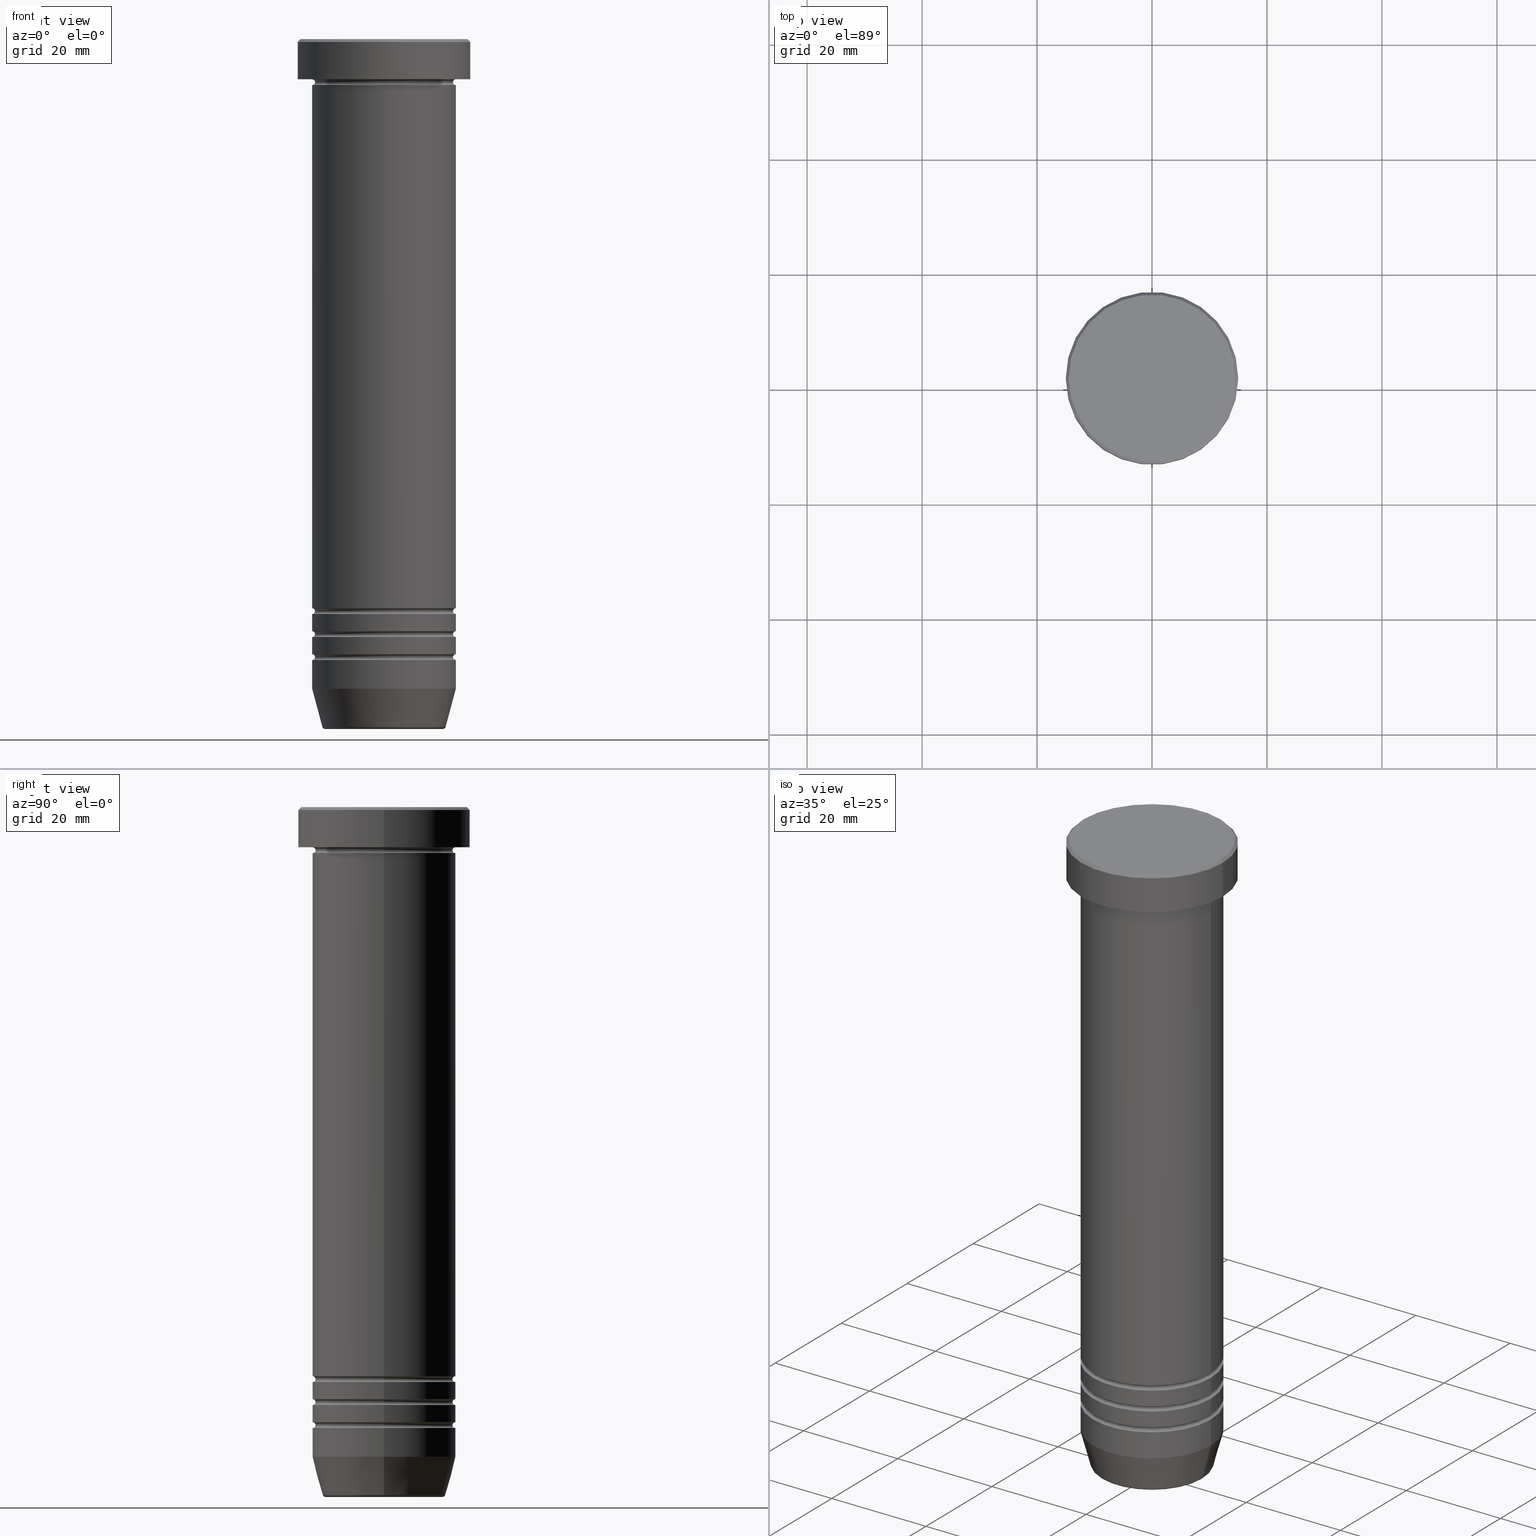
[diagram: canonical four-view strip — front | top / right | iso, engineering-drawing reading convention]
A machine part, canonical four-view strip (front | top / right | iso — engineering-drawing reading convention). The complete STEP part file that produces these views, byte-faithful:
ISO-10303-21;
HEADER;
FILE_DESCRIPTION (( 'STEP AP203' ),
    '1' );
FILE_NAME ('4408.STEP',
    '2024-01-02T20:26:56',
    ( '' ),
    ( '' ),
    'SwSTEP 2.0',
    'SolidWorks 2019',
    '' );
FILE_SCHEMA (( 'CONFIG_CONTROL_DESIGN' ));
ENDSEC;

DATA;
#1 = EDGE_LOOP ( 'NONE', ( #255, #257 ) ) ;
#2 = DIRECTION ( 'NONE',  ( 0.000000000000000000, 0.000000000000000000, -1.000000000000000000 ) ) ;
#3 = ORIENTED_EDGE ( 'NONE', *, *, #861, .T. ) ;
#4 = APPROVAL_STATUS ( 'not_yet_approved' ) ;
#5 = EDGE_CURVE ( 'NONE', #356, #159, #316, .T. ) ;
#6 = DIRECTION ( 'NONE',  ( 0.000000000000000000, 0.000000000000000000, -1.000000000000000000 ) ) ;
#7 = ORIENTED_EDGE ( 'NONE', *, *, #978, .T. ) ;
#8 = FACE_OUTER_BOUND ( 'NONE', #878, .T. ) ;
#9 = DIRECTION ( 'NONE',  ( 1.000000000000000000, 0.000000000000000000, 0.000000000000000000 ) ) ;
#10 = PERSON_AND_ORGANIZATION ( #83, #187 ) ;
#11 = VECTOR ( 'NONE', #612, 1000.000000000000000 ) ;
#12 = VECTOR ( 'NONE', #348, 1000.000000000000000 ) ;
#13 = FACE_OUTER_BOUND ( 'NONE', #201, .T. ) ;
#14 = EDGE_LOOP ( 'NONE', ( #955, #7 ) ) ;
#15 = EDGE_CURVE ( 'NONE', #453, #213, #730, .T. ) ;
#16 = DIRECTION ( 'NONE',  ( -1.000000000000000000, 0.000000000000000000, 0.000000000000000000 ) ) ;
#17 = DIRECTION ( 'NONE',  ( -0.000000000000000000, -0.000000000000000000, 1.000000000000000000 ) ) ;
#18 = CARTESIAN_POINT ( 'NONE',  ( 12.49999999999999289, 0.000000000000000000, -98.99999999999998579 ) ) ;
#19 = ORIENTED_EDGE ( 'NONE', *, *, #311, .F. ) ;
#20 = ADVANCED_FACE ( 'NONE', ( #849 ), #662, .T. ) ;
#21 = LINE ( 'NONE', #676, #12 ) ;
#22 = CARTESIAN_POINT ( 'NONE',  ( 0.000000000000000000, 0.000000000000000000, -99.49999999999998579 ) ) ;
#23 = DIRECTION ( 'NONE',  ( -0.000000000000000000, -0.000000000000000000, 1.000000000000000000 ) ) ;
#24 = ORIENTED_EDGE ( 'NONE', *, *, #842, .F. ) ;
#25 = CARTESIAN_POINT ( 'NONE',  ( 0.000000000000000000, 0.000000000000000000, -27.00000000000000000 ) ) ;
#26 = CARTESIAN_POINT ( 'NONE',  ( 0.000000000000000000, 0.000000000000000000, -99.49999999999998579 ) ) ;
#27 = DATE_TIME_ROLE ( 'classification_date' ) ;
#28 = ORIENTED_EDGE ( 'NONE', *, *, #987, .T. ) ;
#29 = CIRCLE ( 'NONE', #633, 11.99999999999999645 ) ;
#30 = CIRCLE ( 'NONE', #819, 15.00000000000000000 ) ;
#31 = DIRECTION ( 'NONE',  ( 0.000000000000000000, 0.000000000000000000, -1.000000000000000000 ) ) ;
#32 = AXIS2_PLACEMENT_3D ( 'NONE', #832, #340, #923 ) ;
#33 = CC_DESIGN_APPROVAL ( #337, ( #40 ) ) ;
#34 = CARTESIAN_POINT ( 'NONE',  ( -12.50000000000000000, 1.530808498934191521E-15, 0.000000000000000000 ) ) ;
#35 = EDGE_CURVE ( 'NONE', #782, #991, #339, .T. ) ;
#36 = DIRECTION ( 'NONE',  ( 1.000000000000000000, 0.000000000000000000, 0.000000000000000000 ) ) ;
#37 = ORIENTED_EDGE ( 'NONE', *, *, #778, .F. ) ;
#38 = CARTESIAN_POINT ( 'NONE',  ( 14.49999999999999645, 1.806354028742345802E-15, 0.000000000000000000 ) ) ;
#39 = DIRECTION ( 'NONE',  ( -1.224646799147353207E-16, 1.000000000000000000, 0.000000000000000000 ) ) ;
#40 = PRODUCT_DEFINITION ( 'NEZN�M�', '', #1044, #469 ) ;
#41 = CYLINDRICAL_SURFACE ( 'NONE', #820, 12.50000000000000000 ) ;
#42 = ORIENTED_EDGE ( 'NONE', *, *, #615, .F. ) ;
#43 = FACE_OUTER_BOUND ( 'NONE', #500, .T. ) ;
#44 = CARTESIAN_POINT ( 'NONE',  ( 0.000000000000000000, 0.000000000000000000, -0.4999999999999970024 ) ) ;
#45 = CARTESIAN_POINT ( 'NONE',  ( 0.000000000000000000, 0.000000000000000000, -98.99999999999998579 ) ) ;
#46 = EDGE_LOOP ( 'NONE', ( #592, #372, #152, #897 ) ) ;
#47 = AXIS2_PLACEMENT_3D ( 'NONE', #129, #950, #555 ) ;
#48 = EDGE_CURVE ( 'NONE', #991, #719, #682, .T. ) ;
#49 = DIRECTION ( 'NONE',  ( -1.000000000000000000, 0.000000000000000000, 0.000000000000000000 ) ) ;
#50 = TOROIDAL_SURFACE ( 'NONE', #202, 10.24069215899265473, 0.5000000000000000000 ) ;
#51 = DIRECTION ( 'NONE',  ( -0.000000000000000000, -0.000000000000000000, 1.000000000000000000 ) ) ;
#52 = AXIS2_PLACEMENT_3D ( 'NONE', #262, #335, #845 ) ;
#53 = DIRECTION ( 'NONE',  ( 1.000000000000000000, 0.000000000000000000, 0.000000000000000000 ) ) ;
#54 = ORIENTED_EDGE ( 'NONE', *, *, #1014, .F. ) ;
#55 = ORIENTED_EDGE ( 'NONE', *, *, #797, .F. ) ;
#56 = ADVANCED_FACE ( 'NONE', ( #325 ), #182, .F. ) ;
#57 = CARTESIAN_POINT ( 'NONE',  ( -12.50000000000000000, 1.530808498934191521E-15, 0.000000000000000000 ) ) ;
#58 = DIRECTION ( 'NONE',  ( 0.000000000000000000, 0.000000000000000000, -1.000000000000000000 ) ) ;
#59 = ORIENTED_EDGE ( 'NONE', *, *, #48, .T. ) ;
#60 = DIRECTION ( 'NONE',  ( 1.000000000000000000, 0.000000000000000000, 0.000000000000000000 ) ) ;
#61 = VERTEX_POINT ( 'NONE', #825 ) ;
#62 = CIRCLE ( 'NONE', #802, 12.50000000000000000 ) ;
#63 = DIRECTION ( 'NONE',  ( 1.000000000000000000, 0.000000000000000000, 0.000000000000000000 ) ) ;
#64 = CIRCLE ( 'NONE', #749, 12.50000000000000000 ) ;
#65 = CONICAL_SURFACE ( 'NONE', #81, 14.49999999999999645, 0.7853981633974533860 ) ;
#66 = PERSON_AND_ORGANIZATION_ROLE ( 'design_owner' ) ;
#67 = EDGE_LOOP ( 'NONE', ( #765, #498, #743, #1060 ) ) ;
#68 = FACE_OUTER_BOUND ( 'NONE', #779, .T. ) ;
#69 = APPROVAL_DATE_TIME ( #570, #337 ) ;
#70 = ORIENTED_EDGE ( 'NONE', *, *, #875, .T. ) ;
#71 = FACE_OUTER_BOUND ( 'NONE', #14, .T. ) ;
#72 =( NAMED_UNIT ( * ) PLANE_ANGLE_UNIT ( ) SI_UNIT ( $, .RADIAN. ) );
#73 = ORIENTED_EDGE ( 'NONE', *, *, #826, .T. ) ;
#74 = ADVANCED_FACE ( 'NONE', ( #91 ), #884, .F. ) ;
#75 = DIRECTION ( 'NONE',  ( -1.000000000000000000, 0.000000000000000000, 0.000000000000000000 ) ) ;
#76 = ORIENTED_EDGE ( 'NONE', *, *, #736, .F. ) ;
#77 = CLOSED_SHELL ( 'NONE', ( #651, #156, #428, #1061, #266, #965, #551, #770, #999, #718, #847, #466, #1045, #485, #20, #544, #698, #314, #343, #274, #74, #645, #691, #381, #418, #56 ) ) ;
#78 = CIRCLE ( 'NONE', #1055, 0.5000000000000004441 ) ;
#79 = CALENDAR_DATE ( 2024, 2, 1 ) ;
#80 = VECTOR ( 'NONE', #1017, 1000.000000000000000 ) ;
#81 = AXIS2_PLACEMENT_3D ( 'NONE', #947, #207, #789 ) ;
#82 = ORIENTED_EDGE ( 'NONE', *, *, #577, .T. ) ;
#83 = PERSON ( 'NEUR�EN�', 'NEUR�EN�', 'NEUR�EN�', ('NEUR�EN�'), ('NEUR�EN�'), ('NEUR�EN�') ) ;
#84 = DIRECTION ( 'NONE',  ( -0.000000000000000000, -0.000000000000000000, 1.000000000000000000 ) ) ;
#85 = EDGE_CURVE ( 'NONE', #228, #759, #834, .T. ) ;
#86 = ORIENTED_EDGE ( 'NONE', *, *, #814, .T. ) ;
#87 = COORDINATED_UNIVERSAL_TIME_OFFSET ( 1, 0, .AHEAD. ) ;
#88 = CYLINDRICAL_SURFACE ( 'NONE', #855, 12.50000000000000000 ) ;
#89 = ORIENTED_EDGE ( 'NONE', *, *, #610, .T. ) ;
#90 = DIRECTION ( 'NONE',  ( 1.224646799147353207E-16, 1.000000000000000000, 0.000000000000000000 ) ) ;
#91 = FACE_OUTER_BOUND ( 'NONE', #409, .T. ) ;
#92 = ADVANCED_FACE ( 'NONE', ( #193 ), #843, .T. ) ;
#93 = CARTESIAN_POINT ( 'NONE',  ( -12.50000000000000000, 1.530808498934191521E-15, -107.9999999999999858 ) ) ;
#94 = ORIENTED_EDGE ( 'NONE', *, *, #35, .F. ) ;
#95 = CARTESIAN_POINT ( 'NONE',  ( -15.00000000000000000, 1.836970198721029589E-15, -6.999999999999998224 ) ) ;
#96 = CARTESIAN_POINT ( 'NONE',  ( 0.000000000000000000, 12.50000000000000000, -27.00000000000000000 ) ) ;
#97 = AXIS2_PLACEMENT_3D ( 'NONE', #706, #214, #49 ) ;
#98 = CC_DESIGN_PERSON_AND_ORGANIZATION_ASSIGNMENT ( #668, #509, ( #1044 ) ) ;
#99 = DIRECTION ( 'NONE',  ( 1.000000000000000000, 0.000000000000000000, 0.000000000000000000 ) ) ;
#100 = ORIENTED_EDGE ( 'NONE', *, *, #253, .T. ) ;
#101 = CIRCLE ( 'NONE', #602, 12.50000000000000000 ) ;
#102 = AXIS2_PLACEMENT_3D ( 'NONE', #296, #452, #397 ) ;
#103 = FACE_OUTER_BOUND ( 'NONE', #909, .T. ) ;
#104 = DIRECTION ( 'NONE',  ( 1.000000000000000000, 0.000000000000000000, 0.000000000000000000 ) ) ;
#105 = DATE_AND_TIME ( #413, #499 ) ;
#106 = DIRECTION ( 'NONE',  ( -0.000000000000000000, -0.000000000000000000, 1.000000000000000000 ) ) ;
#107 = ORIENTED_EDGE ( 'NONE', *, *, #1029, .F. ) ;
#108 = PLANE ( 'NONE',  #664 ) ;
#109 = DIRECTION ( 'NONE',  ( 0.000000000000000000, 0.000000000000000000, -1.000000000000000000 ) ) ;
#110 = CALENDAR_DATE ( 2024, 2, 1 ) ;
#111 = DIRECTION ( 'NONE',  ( -0.000000000000000000, -0.000000000000000000, 1.000000000000000000 ) ) ;
#112 = ORIENTED_EDGE ( 'NONE', *, *, #1014, .T. ) ;
#113 = LINE ( 'NONE', #128, #637 ) ;
#114 = EDGE_CURVE ( 'NONE', #1053, #971, #478, .T. ) ;
#115 = CARTESIAN_POINT ( 'NONE',  ( 0.000000000000000000, 0.000000000000000000, -120.0000000000000000 ) ) ;
#116 = AXIS2_PLACEMENT_3D ( 'NONE', #677, #593, #589 ) ;
#117 = CARTESIAN_POINT ( 'NONE',  ( -12.49999999999999645, 1.530808498934191127E-15, 0.000000000000000000 ) ) ;
#118 = EDGE_LOOP ( 'NONE', ( #649, #341, #415, #609 ) ) ;
#119 = AXIS2_PLACEMENT_3D ( 'NONE', #721, #1048, #893 ) ;
#120 = AXIS2_PLACEMENT_3D ( 'NONE', #419, #995, #604 ) ;
#121 = DIRECTION ( 'NONE',  ( -1.000000000000000000, 1.224646799147353454E-16, 0.000000000000000000 ) ) ;
#122 = CIRCLE ( 'NONE', #32, 0.5000000000000004441 ) ;
#123 = CC_DESIGN_APPROVAL ( #177, ( #1044 ) ) ;
#124 = DIRECTION ( 'NONE',  ( 1.000000000000000000, 0.000000000000000000, 0.000000000000000000 ) ) ;
#125 = CC_DESIGN_PERSON_AND_ORGANIZATION_ASSIGNMENT ( #1042, #66, ( #224 ) ) ;
#126 = DIRECTION ( 'NONE',  ( 1.000000000000000000, 0.000000000000000000, 0.000000000000000000 ) ) ;
#127 = ORIENTED_EDGE ( 'NONE', *, *, #510, .T. ) ;
#128 = CARTESIAN_POINT ( 'NONE',  ( 12.49999999999999645, 0.000000000000000000, 0.000000000000000000 ) ) ;
#129 = CARTESIAN_POINT ( 'NONE',  ( 0.000000000000000000, 0.000000000000000000, -119.5000000000000000 ) ) ;
#130 = DIRECTION ( 'NONE',  ( 1.000000000000000000, 0.000000000000000000, 0.000000000000000000 ) ) ;
#131 = EDGE_CURVE ( 'NONE', #679, #132, #600, .T. ) ;
#132 = VERTEX_POINT ( 'NONE', #521 ) ;
#133 = DIRECTION ( 'NONE',  ( -0.000000000000000000, -1.000000000000000000, -0.000000000000000000 ) ) ;
#134 = DIRECTION ( 'NONE',  ( -0.000000000000000000, -0.000000000000000000, 1.000000000000000000 ) ) ;
#135 = ORIENTED_EDGE ( 'NONE', *, *, #538, .T. ) ;
#136 = PRODUCT_RELATED_PRODUCT_CATEGORY ( 'detail', '', ( #224 ) ) ;
#137 = CIRCLE ( 'NONE', #701, 11.99999999999999645 ) ;
#138 = AXIS2_PLACEMENT_3D ( 'NONE', #598, #988, #421 ) ;
#139 = DIRECTION ( 'NONE',  ( -0.000000000000000000, -0.000000000000000000, 1.000000000000000000 ) ) ;
#140 = VECTOR ( 'NONE', #23, 1000.000000000000000 ) ;
#141 = VECTOR ( 'NONE', #977, 1000.000000000000000 ) ;
#142 = CARTESIAN_POINT ( 'NONE',  ( 0.000000000000000000, 0.000000000000000000, -120.0000000000000000 ) ) ;
#143 = ORIENTED_EDGE ( 'NONE', *, *, #797, .T. ) ;
#144 = EDGE_LOOP ( 'NONE', ( #822, #244, #807, #653 ) ) ;
#145 = CARTESIAN_POINT ( 'NONE',  ( 0.000000000000000000, 0.000000000000000000, -27.00000000000000000 ) ) ;
#146 = LINE ( 'NONE', #888, #141 ) ;
#147 = ORIENTED_EDGE ( 'NONE', *, *, #1019, .F. ) ;
#148 = PLANE ( 'NONE',  #870 ) ;
#149 = EDGE_CURVE ( 'NONE', #549, #739, #137, .T. ) ;
#150 = PERSON_AND_ORGANIZATION ( #83, #187 ) ;
#151 = EDGE_LOOP ( 'NONE', ( #24, #798, #170, #931 ) ) ;
#152 = ORIENTED_EDGE ( 'NONE', *, *, #1019, .T. ) ;
#153 = DIRECTION ( 'NONE',  ( 0.000000000000000000, 0.000000000000000000, -1.000000000000000000 ) ) ;
#154 = AXIS2_PLACEMENT_3D ( 'NONE', #680, #740, #272 ) ;
#155 = CIRCLE ( 'NONE', #552, 0.5000000000000004441 ) ;
#156 = ADVANCED_FACE ( 'NONE', ( #757 ), #618, .F. ) ;
#157 = FACE_OUTER_BOUND ( 'NONE', #208, .T. ) ;
#158 = EDGE_CURVE ( 'NONE', #132, #741, #531, .T. ) ;
#159 = VERTEX_POINT ( 'NONE', #331 ) ;
#160 = DIRECTION ( 'NONE',  ( 1.000000000000000000, 0.000000000000000000, 0.000000000000000000 ) ) ;
#161 = DIRECTION ( 'NONE',  ( -1.000000000000000000, -1.224646799147353454E-16, 0.000000000000000000 ) ) ;
#162 = ORIENTED_EDGE ( 'NONE', *, *, #206, .T. ) ;
#163 = EDGE_CURVE ( 'NONE', #159, #739, #304, .T. ) ;
#164 = FACE_OUTER_BOUND ( 'NONE', #46, .T. ) ;
#165 = ORIENTED_EDGE ( 'NONE', *, *, #412, .T. ) ;
#166 = AXIS2_PLACEMENT_3D ( 'NONE', #26, #659, #830 ) ;
#167 = TOROIDAL_SURFACE ( 'NONE', #234, 12.49999999999999645, 0.5000000000000000000 ) ;
#168 = APPROVAL_ROLE ( '' ) ;
#169 = CIRCLE ( 'NONE', #969, 12.50000000000000000 ) ;
#170 = ORIENTED_EDGE ( 'NONE', *, *, #529, .T. ) ;
#171 = DIRECTION ( 'NONE',  ( 1.000000000000000000, 0.000000000000000000, 0.000000000000000000 ) ) ;
#172 = EDGE_LOOP ( 'NONE', ( #406, #100, #670, #614 ) ) ;
#173 = CARTESIAN_POINT ( 'NONE',  ( 0.000000000000000000, 0.000000000000000000, -0.4999999999999970024 ) ) ;
#174 = ORIENTED_EDGE ( 'NONE', *, *, #15, .F. ) ;
#175 = DIRECTION ( 'NONE',  ( -0.000000000000000000, -0.000000000000000000, 1.000000000000000000 ) ) ;
#176 = CARTESIAN_POINT ( 'NONE',  ( 0.000000000000000000, 0.000000000000000000, -102.9999999999999858 ) ) ;
#177 = APPROVAL ( #4, 'NEUR�EN�' ) ;
#178 = CARTESIAN_POINT ( 'NONE',  ( -12.00000000000000000, 1.500192328955507734E-15, -7.500000000000000000 ) ) ;
#179 = EDGE_LOOP ( 'NONE', ( #996, #222 ) ) ;
#180 = LINE ( 'NONE', #513, #516 ) ;
#181 = DIRECTION ( 'NONE',  ( -0.000000000000000000, -0.000000000000000000, 1.000000000000000000 ) ) ;
#182 = TOROIDAL_SURFACE ( 'NONE', #166, 12.49999999999999645, 0.5000000000000000000 ) ;
#183 = CIRCLE ( 'NONE', #787, 0.5000000000000004441 ) ;
#184 = DIRECTION ( 'NONE',  ( 1.000000000000000000, 0.000000000000000000, 0.000000000000000000 ) ) ;
#185 = ORIENTED_EDGE ( 'NONE', *, *, #723, .F. ) ;
#186 = CONICAL_SURFACE ( 'NONE', #533, 10.62435565298213547, 0.2617993877991500740 ) ;
#187 = ORGANIZATION ( 'NEUR�EN�', 'NEUR�EN�', '' ) ;
#188 = DIRECTION ( 'NONE',  ( 0.000000000000000000, 0.000000000000000000, -1.000000000000000000 ) ) ;
#189 = DIRECTION ( 'NONE',  ( 0.2588190451025213501, 0.000000000000000000, 0.9659258262890680902 ) ) ;
#190 = DIRECTION ( 'NONE',  ( -1.000000000000000000, 0.000000000000000000, 0.000000000000000000 ) ) ;
#191 = EDGE_LOOP ( 'NONE', ( #882, #693, #395, #185 ) ) ;
#192 = EDGE_CURVE ( 'NONE', #269, #1058, #530, .T. ) ;
#193 = FACE_OUTER_BOUND ( 'NONE', #1, .T. ) ;
#194 = DIRECTION ( 'NONE',  ( -0.000000000000000000, -0.000000000000000000, 1.000000000000000000 ) ) ;
#195 = ORIENTED_EDGE ( 'NONE', *, *, #861, .F. ) ;
#196 = EDGE_CURVE ( 'NONE', #872, #1058, #303, .T. ) ;
#197 = CARTESIAN_POINT ( 'NONE',  ( -12.50000000000000000, 1.530808498934191521E-15, -112.9999999999999858 ) ) ;
#198 = CARTESIAN_POINT ( 'NONE',  ( -15.00000000000000000, 1.836970198721029589E-15, 0.000000000000000000 ) ) ;
#199 = AXIS2_PLACEMENT_3D ( 'NONE', #115, #508, #913 ) ;
#200 = CARTESIAN_POINT ( 'NONE',  ( 0.000000000000000000, 0.000000000000000000, 0.000000000000000000 ) ) ;
#201 = EDGE_LOOP ( 'NONE', ( #1043, #755, #280, #714 ) ) ;
#202 = AXIS2_PLACEMENT_3D ( 'NONE', #342, #580, #429 ) ;
#203 = AXIS2_PLACEMENT_3D ( 'NONE', #363, #859, #852 ) ;
#204 = CARTESIAN_POINT ( 'NONE',  ( 0.000000000000000000, -3.469446951953614189E-15, -27.00000000000000000 ) ) ;
#205 = DIRECTION ( 'NONE',  ( -1.000000000000000000, 0.000000000000000000, 0.000000000000000000 ) ) ;
#206 = EDGE_CURVE ( 'NONE', #940, #635, #364, .T. ) ;
#207 = DIRECTION ( 'NONE',  ( 0.000000000000000000, 0.000000000000000000, -1.000000000000000000 ) ) ;
#208 = EDGE_LOOP ( 'NONE', ( #37, #379, #486, #28 ) ) ;
#209 = CARTESIAN_POINT ( 'NONE',  ( 11.99999999999999645, 0.000000000000000000, -103.4999999999999858 ) ) ;
#210 = FACE_OUTER_BOUND ( 'NONE', #535, .T. ) ;
#211 = EDGE_CURVE ( 'NONE', #782, #940, #353, .T. ) ;
#212 = DIRECTION ( 'NONE',  ( -0.000000000000000000, -0.000000000000000000, 1.000000000000000000 ) ) ;
#213 = VERTEX_POINT ( 'NONE', #854 ) ;
#214 = DIRECTION ( 'NONE',  ( 0.000000000000000000, 0.000000000000000000, -1.000000000000000000 ) ) ;
#215 = CARTESIAN_POINT ( 'NONE',  ( 12.49999999999999645, 1.530808498934191127E-15, -103.4999999999999858 ) ) ;
#216 = CARTESIAN_POINT ( 'NONE',  ( 0.000000000000000000, 0.000000000000000000, 0.000000000000000000 ) ) ;
#217 = ORIENTED_EDGE ( 'NONE', *, *, #206, .F. ) ;
#218 = CIRCLE ( 'NONE', #601, 12.49999999999999289 ) ;
#219 = AXIS2_PLACEMENT_3D ( 'NONE', #613, #382, #36 ) ;
#220 = CIRCLE ( 'NONE', #752, 0.5000000000000004441 ) ;
#221 = DIRECTION ( 'NONE',  ( 1.000000000000000000, 0.000000000000000000, 0.000000000000000000 ) ) ;
#222 = ORIENTED_EDGE ( 'NONE', *, *, #900, .T. ) ;
#223 = EDGE_CURVE ( 'NONE', #228, #911, #422, .T. ) ;
#224 = PRODUCT ( '4408', '4408', '', ( #881 ) ) ;
#225 = DIRECTION ( 'NONE',  ( -1.000000000000000000, -1.224646799147353454E-16, 0.000000000000000000 ) ) ;
#226 = CARTESIAN_POINT ( 'NONE',  ( 0.000000000000000000, 0.000000000000000000, -103.4999999999999858 ) ) ;
#227 = ORIENTED_EDGE ( 'NONE', *, *, #15, .T. ) ;
#228 = VERTEX_POINT ( 'NONE', #291 ) ;
#229 = EDGE_CURVE ( 'NONE', #506, #818, #493, .T. ) ;
#230 = CARTESIAN_POINT ( 'NONE',  ( 10.24069215899265473, 0.000000000000000000, -119.5000000000000000 ) ) ;
#231 =( NAMED_UNIT ( * ) SI_UNIT ( $, .STERADIAN. ) SOLID_ANGLE_UNIT ( ) );
#232 = AXIS2_PLACEMENT_3D ( 'NONE', #176, #344, #260 ) ;
#233 = CARTESIAN_POINT ( 'NONE',  ( 0.000000000000000000, 0.000000000000000000, -103.4999999999999858 ) ) ;
#234 = AXIS2_PLACEMENT_3D ( 'NONE', #476, #384, #890 ) ;
#235 = MANIFOLD_SOLID_BREP ( 'Zkosen�1', #767 ) ;
#236 = AXIS2_PLACEMENT_3D ( 'NONE', #773, #284, #939 ) ;
#237 = EDGE_CURVE ( 'NONE', #846, #979, #369, .T. ) ;
#238 = CYLINDRICAL_SURFACE ( 'NONE', #568, 12.49999999999999645 ) ;
#239 = DIRECTION ( 'NONE',  ( 0.000000000000000000, 0.000000000000000000, -1.000000000000000000 ) ) ;
#240 = COORDINATED_UNIVERSAL_TIME_OFFSET ( 1, 0, .AHEAD. ) ;
#241 = ORIENTED_EDGE ( 'NONE', *, *, #301, .F. ) ;
#242 = DIRECTION ( 'NONE',  ( 1.000000000000000000, 0.000000000000000000, 0.000000000000000000 ) ) ;
#243 = ORIENTED_EDGE ( 'NONE', *, *, #960, .F. ) ;
#244 = ORIENTED_EDGE ( 'NONE', *, *, #736, .T. ) ;
#245 = FACE_OUTER_BOUND ( 'NONE', #67, .T. ) ;
#246 = CIRCLE ( 'NONE', #983, 0.5000000000000004441 ) ;
#247 = DIRECTION ( 'NONE',  ( 1.000000000000000000, 0.000000000000000000, 0.000000000000000000 ) ) ;
#248 = AXIS2_PLACEMENT_3D ( 'NONE', #880, #435, #829 ) ;
#249 = AXIS2_PLACEMENT_3D ( 'NONE', #608, #596, #916 ) ;
#250 = PERSON_AND_ORGANIZATION_ROLE ( 'creator' ) ;
#251 = DIRECTION ( 'NONE',  ( -1.000000000000000000, 1.224646799147353454E-16, 0.000000000000000000 ) ) ;
#252 = ORIENTED_EDGE ( 'NONE', *, *, #149, .T. ) ;
#253 = EDGE_CURVE ( 'NONE', #489, #872, #624, .T. ) ;
#254 = CARTESIAN_POINT ( 'NONE',  ( 0.000000000000000000, 0.000000000000000000, -6.999999999999999112 ) ) ;
#255 = ORIENTED_EDGE ( 'NONE', *, *, #571, .F. ) ;
#256 = FACE_OUTER_BOUND ( 'NONE', #586, .T. ) ;
#257 = ORIENTED_EDGE ( 'NONE', *, *, #727, .F. ) ;
#258 = DIRECTION ( 'NONE',  ( -0.000000000000000000, -0.000000000000000000, 1.000000000000000000 ) ) ;
#259 = ADVANCED_FACE ( 'NONE', ( #929 ), #786, .F. ) ;
#260 = DIRECTION ( 'NONE',  ( 1.000000000000000000, 0.000000000000000000, 0.000000000000000000 ) ) ;
#261 = APPROVAL_ROLE ( '' ) ;
#262 = CARTESIAN_POINT ( 'NONE',  ( 0.000000000000000000, 0.000000000000000000, -99.99999999999998579 ) ) ;
#263 = ORIENTED_EDGE ( 'NONE', *, *, #85, .T. ) ;
#264 = CARTESIAN_POINT ( 'NONE',  ( -11.99999999999999645, 1.500192328955507143E-15, -99.49999999999998579 ) ) ;
#265 = AXIS2_PLACEMENT_3D ( 'NONE', #860, #1022, #868 ) ;
#266 = ADVANCED_FACE ( 'NONE', ( #210 ), #951, .F. ) ;
#267 = TOROIDAL_SURFACE ( 'NONE', #203, 12.49999999999999645, 0.5000000000000000000 ) ;
#268 = CARTESIAN_POINT ( 'NONE',  ( 0.000000000000000000, 0.000000000000000000, 0.000000000000000000 ) ) ;
#269 = VERTEX_POINT ( 'NONE', #700 ) ;
#270 = AXIS2_PLACEMENT_3D ( 'NONE', #669, #1000, #184 ) ;
#271 = CIRCLE ( 'NONE', #938, 12.00000000000000000 ) ;
#272 = DIRECTION ( 'NONE',  ( 1.000000000000000000, 0.000000000000000000, 0.000000000000000000 ) ) ;
#273 = CARTESIAN_POINT ( 'NONE',  ( 0.000000000000000000, 0.000000000000000000, -99.49999999999998579 ) ) ;
#274 = ADVANCED_FACE ( 'NONE', ( #946 ), #578, .T. ) ;
#275 = CYLINDRICAL_SURFACE ( 'NONE', #249, 12.50000000000000000 ) ;
#276 = ORIENTED_EDGE ( 'NONE', *, *, #367, .T. ) ;
#277 = DIRECTION ( 'NONE',  ( -0.000000000000000000, -0.000000000000000000, 1.000000000000000000 ) ) ;
#278 = CARTESIAN_POINT ( 'NONE',  ( 0.000000000000000000, 0.000000000000000000, -98.99999999999998579 ) ) ;
#279 = FACE_OUTER_BOUND ( 'NONE', #949, .T. ) ;
#280 = ORIENTED_EDGE ( 'NONE', *, *, #761, .F. ) ;
#281 = EDGE_CURVE ( 'NONE', #892, #711, #29, .T. ) ;
#282 = PLANE ( 'NONE',  #447 ) ;
#283 = AXIS2_PLACEMENT_3D ( 'NONE', #441, #17, #981 ) ;
#284 = DIRECTION ( 'NONE',  ( -0.000000000000000000, -0.000000000000000000, 1.000000000000000000 ) ) ;
#285 = ORIENTED_EDGE ( 'NONE', *, *, #229, .T. ) ;
#286 = CIRCLE ( 'NONE', #424, 11.99999999999999645 ) ;
#287 = AXIS2_PLACEMENT_3D ( 'NONE', #173, #6, #511 ) ;
#288 = DIRECTION ( 'NONE',  ( -0.000000000000000000, -0.000000000000000000, 1.000000000000000000 ) ) ;
#289 = AXIS2_PLACEMENT_3D ( 'NONE', #474, #400, #647 ) ;
#290 = EDGE_CURVE ( 'NONE', #213, #711, #246, .T. ) ;
#291 = CARTESIAN_POINT ( 'NONE',  ( 12.00000000000000000, 0.000000000000000000, -7.500000000000000000 ) ) ;
#292 = DIRECTION ( 'NONE',  ( 0.000000000000000000, -1.000000000000000000, 0.000000000000000000 ) ) ;
#293 = ORIENTED_EDGE ( 'NONE', *, *, #477, .T. ) ;
#294 = DIRECTION ( 'NONE',  ( 1.224646799147353207E-16, 1.000000000000000000, 0.000000000000000000 ) ) ;
#295 = CARTESIAN_POINT ( 'NONE',  ( 12.50000000000000000, 1.530808498934191521E-15, -7.500000000000000000 ) ) ;
#296 = CARTESIAN_POINT ( 'NONE',  ( 0.000000000000000000, 0.000000000000000000, -112.9999999999999858 ) ) ;
#297 = ORIENTED_EDGE ( 'NONE', *, *, #538, .F. ) ;
#298 = ORIENTED_EDGE ( 'NONE', *, *, #494, .T. ) ;
#299 = CARTESIAN_POINT ( 'NONE',  ( 12.49999999999999645, 0.000000000000000000, -103.4999999999999858 ) ) ;
#300 = CARTESIAN_POINT ( 'NONE',  ( 0.000000000000000000, 0.000000000000000000, -107.4999999999999858 ) ) ;
#301 = EDGE_CURVE ( 'NONE', #605, #661, #62, .T. ) ;
#302 = EDGE_LOOP ( 'NONE', ( #174, #322, #147, #710 ) ) ;
#303 = CIRCLE ( 'NONE', #817, 15.00000000000000000 ) ;
#304 = CIRCLE ( 'NONE', #681, 0.5000000000000004441 ) ;
#305 = AXIS2_PLACEMENT_3D ( 'NONE', #715, #1038, #639 ) ;
#306 = DIRECTION ( 'NONE',  ( 0.000000000000000000, -0.000000000000000000, 1.000000000000000000 ) ) ;
#307 = CIRCLE ( 'NONE', #620, 12.49999999999999289 ) ;
#308 = CIRCLE ( 'NONE', #970, 12.50000000000000000 ) ;
#309 = CARTESIAN_POINT ( 'NONE',  ( -14.49999999999999645, 0.000000000000000000, 0.000000000000000000 ) ) ;
#310 = ORIENTED_EDGE ( 'NONE', *, *, #472, .T. ) ;
#311 = EDGE_CURVE ( 'NONE', #453, #356, #776, .T. ) ;
#312 = CARTESIAN_POINT ( 'NONE',  ( 0.000000000000000000, 0.000000000000000000, -6.999999999999998224 ) ) ;
#313 = VERTEX_POINT ( 'NONE', #455 ) ;
#314 = ADVANCED_FACE ( 'NONE', ( #690 ), #1011, .T. ) ;
#315 = PERSON_AND_ORGANIZATION_ROLE ( 'creator' ) ;
#316 = CIRCLE ( 'NONE', #116, 12.50000000000000000 ) ;
#317 = FACE_OUTER_BOUND ( 'NONE', #1026, .T. ) ;
#318 = CC_DESIGN_DATE_AND_TIME_ASSIGNMENT ( #982, #27, ( #358 ) ) ;
#319 = AXIS2_PLACEMENT_3D ( 'NONE', #696, #866, #457 ) ;
#320 = APPROVAL_STATUS ( 'not_yet_approved' ) ;
#321 = EDGE_LOOP ( 'NONE', ( #1009, #42, #276, #863 ) ) ;
#322 = ORIENTED_EDGE ( 'NONE', *, *, #663, .T. ) ;
#323 = ORIENTED_EDGE ( 'NONE', *, *, #885, .F. ) ;
#324 = DIRECTION ( 'NONE',  ( -0.000000000000000000, -1.000000000000000000, -0.000000000000000000 ) ) ;
#325 = FACE_OUTER_BOUND ( 'NONE', #874, .T. ) ;
#326 = EDGE_CURVE ( 'NONE', #741, #711, #564, .T. ) ;
#327 = DIRECTION ( 'NONE',  ( -0.000000000000000000, -0.000000000000000000, 1.000000000000000000 ) ) ;
#328 = ORIENTED_EDGE ( 'NONE', *, *, #281, .T. ) ;
#329 = CARTESIAN_POINT ( 'NONE',  ( -12.49999999999999645, 1.530808498934191127E-15, -99.49999999999998579 ) ) ;
#330 = VECTOR ( 'NONE', #780, 1000.000000000000000 ) ;
#331 = CARTESIAN_POINT ( 'NONE',  ( 12.50000000000000000, 0.000000000000000000, -99.99999999999998579 ) ) ;
#332 = CIRCLE ( 'NONE', #934, 12.50000000000000000 ) ;
#333 = CONICAL_SURFACE ( 'NONE', #837, 14.49999999999999645, 0.7853981633974533860 ) ;
#334 = CIRCLE ( 'NONE', #705, 0.5000000000000004441 ) ;
#335 = DIRECTION ( 'NONE',  ( -0.000000000000000000, -0.000000000000000000, 1.000000000000000000 ) ) ;
#336 = EDGE_LOOP ( 'NONE', ( #792, #576 ) ) ;
#337 = APPROVAL ( #320, 'NEUR�EN�' ) ;
#338 = DIRECTION ( 'NONE',  ( 1.000000000000000000, 0.000000000000000000, 0.000000000000000000 ) ) ;
#339 = LINE ( 'NONE', #503, #716 ) ;
#340 = DIRECTION ( 'NONE',  ( 1.224646799147353207E-16, 1.000000000000000000, 0.000000000000000000 ) ) ;
#341 = ORIENTED_EDGE ( 'NONE', *, *, #842, .T. ) ;
#342 = CARTESIAN_POINT ( 'NONE',  ( 0.000000000000000000, 0.000000000000000000, -119.5000000000000000 ) ) ;
#343 = ADVANCED_FACE ( 'NONE', ( #317 ), #815, .T. ) ;
#344 = DIRECTION ( 'NONE',  ( -0.000000000000000000, -0.000000000000000000, 1.000000000000000000 ) ) ;
#345 = APPROVAL_DATE_TIME ( #105, #594 ) ;
#346 = LINE ( 'NONE', #747, #805 ) ;
#347 = ORIENTED_EDGE ( 'NONE', *, *, #131, .F. ) ;
#348 = DIRECTION ( 'NONE',  ( -0.000000000000000000, -0.000000000000000000, 1.000000000000000000 ) ) ;
#349 = APPLICATION_CONTEXT ( 'configuration controlled 3d designs of mechanical parts and assemblies' ) ;
#350 = DIRECTION ( 'NONE',  ( 0.000000000000000000, 0.000000000000000000, -1.000000000000000000 ) ) ;
#351 = EDGE_CURVE ( 'NONE', #489, #269, #30, .T. ) ;
#352 = SHAPE_DEFINITION_REPRESENTATION ( #385, #1046 ) ;
#353 = CIRCLE ( 'NONE', #265, 10.72365507213718416 ) ;
#354 = CIRCLE ( 'NONE', #119, 11.99999999999999645 ) ;
#355 = CARTESIAN_POINT ( 'NONE',  ( 0.000000000000000000, 0.000000000000000000, -6.999999999999999112 ) ) ;
#356 = VERTEX_POINT ( 'NONE', #811 ) ;
#357 = AXIS2_PLACEMENT_3D ( 'NONE', #536, #368, #1020 ) ;
#358 = SECURITY_CLASSIFICATION ( '', '', #431 ) ;
#359 = FACE_OUTER_BOUND ( 'NONE', #491, .T. ) ;
#360 = DIRECTION ( 'NONE',  ( 0.000000000000000000, 0.000000000000000000, -1.000000000000000000 ) ) ;
#361 = DIRECTION ( 'NONE',  ( -0.000000000000000000, -0.000000000000000000, 1.000000000000000000 ) ) ;
#362 = ORIENTED_EDGE ( 'NONE', *, *, #386, .F. ) ;
#363 = CARTESIAN_POINT ( 'NONE',  ( 0.000000000000000000, 0.000000000000000000, -99.49999999999998579 ) ) ;
#364 = LINE ( 'NONE', #695, #442 ) ;
#365 = CARTESIAN_POINT ( 'NONE',  ( 12.50000000000000000, 1.530808498934191521E-15, -6.999999999999999112 ) ) ;
#366 = EDGE_LOOP ( 'NONE', ( #704, #439, #724, #243 ) ) ;
#367 = EDGE_CURVE ( 'NONE', #313, #782, #78, .T. ) ;
#368 = DIRECTION ( 'NONE',  ( -0.000000000000000000, -0.000000000000000000, 1.000000000000000000 ) ) ;
#369 = LINE ( 'NONE', #57, #966 ) ;
#370 = AXIS2_PLACEMENT_3D ( 'NONE', #96, #350, #1007 ) ;
#371 = DIRECTION ( 'NONE',  ( 1.000000000000000000, 0.000000000000000000, 0.000000000000000000 ) ) ;
#372 = ORIENTED_EDGE ( 'NONE', *, *, #326, .T. ) ;
#373 = AXIS2_PLACEMENT_3D ( 'NONE', #1059, #396, #646 ) ;
#374 = CIRCLE ( 'NONE', #357, 10.72365507213718416 ) ;
#375 = CARTESIAN_POINT ( 'NONE',  ( 0.000000000000000000, 0.000000000000000000, 0.000000000000000000 ) ) ;
#376 = CIRCLE ( 'NONE', #886, 11.99999999999999645 ) ;
#377 = DIRECTION ( 'NONE',  ( 1.000000000000000000, 0.000000000000000000, 0.000000000000000000 ) ) ;
#378 = CARTESIAN_POINT ( 'NONE',  ( 0.000000000000000000, 0.000000000000000000, -103.9999999999999858 ) ) ;
#379 = ORIENTED_EDGE ( 'NONE', *, *, #85, .F. ) ;
#380 = CARTESIAN_POINT ( 'NONE',  ( 0.000000000000000000, 0.000000000000000000, -7.500000000000000000 ) ) ;
#381 = ADVANCED_FACE ( 'NONE', ( #964 ), #404, .F. ) ;
#382 = DIRECTION ( 'NONE',  ( -0.000000000000000000, -0.000000000000000000, 1.000000000000000000 ) ) ;
#383 = ORIENTED_EDGE ( 'NONE', *, *, #856, .T. ) ;
#384 = DIRECTION ( 'NONE',  ( -0.000000000000000000, -0.000000000000000000, 1.000000000000000000 ) ) ;
#385 = PRODUCT_DEFINITION_SHAPE ( 'NONE', 'NONE',  #40 ) ;
#386 = EDGE_CURVE ( 'NONE', #790, #971, #579, .T. ) ;
#387 = UNCERTAINTY_MEASURE_WITH_UNIT (LENGTH_MEASURE( 1.000000000000000082E-05 ), #488, 'distance_accuracy_value', 'NONE');
#388 = ORIENTED_EDGE ( 'NONE', *, *, #960, .T. ) ;
#389 = AXIS2_PLACEMENT_3D ( 'NONE', #22, #762, #526 ) ;
#390 = AXIS2_PLACEMENT_3D ( 'NONE', #919, #980, #16 ) ;
#391 = CIRCLE ( 'NONE', #771, 12.50000000000000000 ) ;
#392 = CARTESIAN_POINT ( 'NONE',  ( 0.000000000000000000, 0.000000000000000000, 0.000000000000000000 ) ) ;
#393 = DIRECTION ( 'NONE',  ( -1.224646799147353207E-16, 1.000000000000000000, 0.000000000000000000 ) ) ;
#394 = EDGE_CURVE ( 'NONE', #1049, #688, #550, .T. ) ;
#395 = ORIENTED_EDGE ( 'NONE', *, *, #783, .F. ) ;
#396 = DIRECTION ( 'NONE',  ( 0.000000000000000000, 0.000000000000000000, -1.000000000000000000 ) ) ;
#397 = DIRECTION ( 'NONE',  ( 1.000000000000000000, 0.000000000000000000, 0.000000000000000000 ) ) ;
#398 = ADVANCED_FACE ( 'NONE', ( #71 ), #148, .T. ) ;
#399 = CARTESIAN_POINT ( 'NONE',  ( 0.000000000000000000, 0.000000000000000000, 0.000000000000000000 ) ) ;
#400 = DIRECTION ( 'NONE',  ( -0.000000000000000000, -0.000000000000000000, 1.000000000000000000 ) ) ;
#401 = ORIENTED_EDGE ( 'NONE', *, *, #577, .F. ) ;
#402 = AXIS2_PLACEMENT_3D ( 'NONE', #380, #450, #205 ) ;
#403 = DIRECTION ( 'NONE',  ( 0.000000000000000000, 0.000000000000000000, -1.000000000000000000 ) ) ;
#404 = TOROIDAL_SURFACE ( 'NONE', #480, 12.49999999999999645, 0.5000000000000000000 ) ;
#405 = CIRCLE ( 'NONE', #120, 12.50000000000000000 ) ;
#406 = ORIENTED_EDGE ( 'NONE', *, *, #922, .T. ) ;
#407 = LOCAL_TIME ( 21, 26, 56.00000000000000000, #812 ) ;
#408 = DIRECTION ( 'NONE',  ( 1.000000000000000000, 0.000000000000000000, 0.000000000000000000 ) ) ;
#409 = EDGE_LOOP ( 'NONE', ( #76, #986, #293, #1036 ) ) ;
#410 = CARTESIAN_POINT ( 'NONE',  ( 12.50000000000000000, 0.000000000000000000, -7.500000000000000000 ) ) ;
#411 = ORIENTED_EDGE ( 'NONE', *, *, #1050, .T. ) ;
#412 = EDGE_CURVE ( 'NONE', #739, #549, #354, .T. ) ;
#413 = CALENDAR_DATE ( 2024, 2, 1 ) ;
#414 = CARTESIAN_POINT ( 'NONE',  ( 10.72365507213718416, 0.000000000000000000, -119.6294095225512706 ) ) ;
#415 = ORIENTED_EDGE ( 'NONE', *, *, #196, .F. ) ;
#416 = CARTESIAN_POINT ( 'NONE',  ( 0.000000000000000000, 0.000000000000000000, -107.4999999999999858 ) ) ;
#417 = ORIENTED_EDGE ( 'NONE', *, *, #900, .F. ) ;
#418 = ADVANCED_FACE ( 'NONE', ( #808 ), #167, .F. ) ;
#419 = CARTESIAN_POINT ( 'NONE',  ( 0.000000000000000000, 0.000000000000000000, -27.00000000000000000 ) ) ;
#420 = ORIENTED_EDGE ( 'NONE', *, *, #502, .F. ) ;
#421 = DIRECTION ( 'NONE',  ( 1.000000000000000000, 0.000000000000000000, 0.000000000000000000 ) ) ;
#422 = CIRCLE ( 'NONE', #869, 0.5000000000000004441 ) ;
#423 = ORIENTED_EDGE ( 'NONE', *, *, #472, .F. ) ;
#424 = AXIS2_PLACEMENT_3D ( 'NONE', #416, #188, #501 ) ;
#425 = TOROIDAL_SURFACE ( 'NONE', #270, 12.50000000000000000, 0.5000000000000000000 ) ;
#426 = DIRECTION ( 'NONE',  ( 1.000000000000000000, 0.000000000000000000, 0.000000000000000000 ) ) ;
#427 = ORIENTED_EDGE ( 'NONE', *, *, #783, .T. ) ;
#428 = ADVANCED_FACE ( 'NONE', ( #164 ), #769, .F. ) ;
#429 = DIRECTION ( 'NONE',  ( 1.000000000000000000, 0.000000000000000000, 0.000000000000000000 ) ) ;
#430 = DIRECTION ( 'NONE',  ( -0.000000000000000000, -0.000000000000000000, 1.000000000000000000 ) ) ;
#431 = SECURITY_CLASSIFICATION_LEVEL ( 'unclassified' ) ;
#432 = LINE ( 'NONE', #527, #497 ) ;
#433 = ORIENTED_EDGE ( 'NONE', *, *, #879, .T. ) ;
#434 = ADVANCED_FACE ( 'NONE', ( #490, #68 ), #558, .T. ) ;
#435 = DIRECTION ( 'NONE',  ( 0.000000000000000000, -1.000000000000000000, 0.000000000000000000 ) ) ;
#436 = VERTEX_POINT ( 'NONE', #734 ) ;
#437 = COORDINATED_UNIVERSAL_TIME_OFFSET ( 1, 0, .AHEAD. ) ;
#438 = LINE ( 'NONE', #905, #140 ) ;
#439 = ORIENTED_EDGE ( 'NONE', *, *, #629, .T. ) ;
#440 = DIRECTION ( 'NONE',  ( -0.000000000000000000, -0.000000000000000000, 1.000000000000000000 ) ) ;
#441 = CARTESIAN_POINT ( 'NONE',  ( 0.000000000000000000, 0.000000000000000000, -7.500000000000000000 ) ) ;
#442 = VECTOR ( 'NONE', #1016, 1000.000000000000000 ) ;
#443 = AXIS2_PLACEMENT_3D ( 'NONE', #215, #468, #225 ) ;
#444 = AXIS2_PLACEMENT_3D ( 'NONE', #821, #324, #2 ) ;
#445 = DIRECTION ( 'NONE',  ( 1.000000000000000000, 0.000000000000000000, 0.000000000000000000 ) ) ;
#446 = ORIENTED_EDGE ( 'NONE', *, *, #131, .T. ) ;
#447 = AXIS2_PLACEMENT_3D ( 'NONE', #204, #31, #784 ) ;
#448 = AXIS2_PLACEMENT_3D ( 'NONE', #461, #630, #53 ) ;
#449 = FACE_OUTER_BOUND ( 'NONE', #151, .T. ) ;
#450 = DIRECTION ( 'NONE',  ( 0.000000000000000000, 0.000000000000000000, -1.000000000000000000 ) ) ;
#451 = ADVANCED_FACE ( 'NONE', ( #157 ), #984, .F. ) ;
#452 = DIRECTION ( 'NONE',  ( -0.000000000000000000, -0.000000000000000000, 1.000000000000000000 ) ) ;
#453 = VERTEX_POINT ( 'NONE', #487 ) ;
#454 = FACE_OUTER_BOUND ( 'NONE', #172, .T. ) ;
#455 = CARTESIAN_POINT ( 'NONE',  ( 10.24069215899265473, 0.000000000000000000, -120.0000000000000000 ) ) ;
#456 = CC_DESIGN_PERSON_AND_ORGANIZATION_ASSIGNMENT ( #973, #315, ( #40 ) ) ;
#457 = DIRECTION ( 'NONE',  ( 1.000000000000000000, 0.000000000000000000, 0.000000000000000000 ) ) ;
#458 = EDGE_LOOP ( 'NONE', ( #867, #851, #545, #401 ) ) ;
#459 = DIRECTION ( 'NONE',  ( 0.000000000000000000, 0.000000000000000000, -1.000000000000000000 ) ) ;
#460 = DIRECTION ( 'NONE',  ( 1.000000000000000000, 0.000000000000000000, 0.000000000000000000 ) ) ;
#461 = CARTESIAN_POINT ( 'NONE',  ( 0.000000000000000000, 0.000000000000000000, 0.000000000000000000 ) ) ;
#462 = EDGE_LOOP ( 'NONE', ( #492, #420, #675, #465 ) ) ;
#463 = TOROIDAL_SURFACE ( 'NONE', #97, 12.49999999999999645, 0.5000000000000000000 ) ;
#464 = CIRCLE ( 'NONE', #219, 15.00000000000000000 ) ;
#465 = ORIENTED_EDGE ( 'NONE', *, *, #281, .F. ) ;
#466 = ADVANCED_FACE ( 'NONE', ( #728 ), #654, .T. ) ;
#467 = LOCAL_TIME ( 21, 26, 56.00000000000000000, #240 ) ;
#468 = DIRECTION ( 'NONE',  ( -1.224646799147353207E-16, 1.000000000000000000, 0.000000000000000000 ) ) ;
#469 = DESIGN_CONTEXT ( 'detailed design', #349, 'design' ) ;
#470 = FACE_OUTER_BOUND ( 'NONE', #572, .T. ) ;
#471 = ORIENTED_EDGE ( 'NONE', *, *, #1029, .T. ) ;
#472 = EDGE_CURVE ( 'NONE', #356, #549, #967, .T. ) ;
#473 = DIRECTION ( 'NONE',  ( 0.000000000000000000, 0.000000000000000000, -1.000000000000000000 ) ) ;
#474 = CARTESIAN_POINT ( 'NONE',  ( 0.000000000000000000, 0.000000000000000000, -103.4999999999999858 ) ) ;
#475 = ORIENTED_EDGE ( 'NONE', *, *, #993, .F. ) ;
#476 = CARTESIAN_POINT ( 'NONE',  ( 0.000000000000000000, 0.000000000000000000, -99.49999999999998579 ) ) ;
#477 = EDGE_CURVE ( 'NONE', #655, #1053, #496, .T. ) ;
#478 = CIRCLE ( 'NONE', #547, 11.99999999999999645 ) ;
#479 = EDGE_LOOP ( 'NONE', ( #917, #263, #927, #297 ) ) ;
#480 = AXIS2_PLACEMENT_3D ( 'NONE', #233, #643, #75 ) ;
#481 = CIRCLE ( 'NONE', #702, 12.50000000000000000 ) ;
#482 = DIRECTION ( 'NONE',  ( 1.000000000000000000, 0.000000000000000000, 0.000000000000000000 ) ) ;
#483 = CC_DESIGN_APPROVAL ( #594, ( #358 ) ) ;
#484 = APPLICATION_PROTOCOL_DEFINITION ( 'international standard', 'config_control_design', 1994, #349 ) ;
#485 = ADVANCED_FACE ( 'NONE', ( #8 ), #836, .T. ) ;
#486 = ORIENTED_EDGE ( 'NONE', *, *, #625, .T. ) ;
#487 = CARTESIAN_POINT ( 'NONE',  ( -12.49999999999999822, 1.530808498934191324E-15, -102.9999999999999858 ) ) ;
#488 =( LENGTH_UNIT ( ) NAMED_UNIT ( * ) SI_UNIT ( .MILLI., .METRE. ) );
#489 = VERTEX_POINT ( 'NONE', #95 ) ;
#490 = FACE_BOUND ( 'NONE', #894, .T. ) ;
#491 = EDGE_LOOP ( 'NONE', ( #1047, #162, #323, #94 ) ) ;
#492 = ORIENTED_EDGE ( 'NONE', *, *, #663, .F. ) ;
#493 = CIRCLE ( 'NONE', #1037, 12.49999999999999289 ) ;
#494 = EDGE_CURVE ( 'NONE', #679, #655, #218, .T. ) ;
#495 = DIRECTION ( 'NONE',  ( 1.000000000000000000, 0.000000000000000000, 0.000000000000000000 ) ) ;
#496 = CIRCLE ( 'NONE', #248, 0.5000000000000004441 ) ;
#497 = VECTOR ( 'NONE', #327, 1000.000000000000000 ) ;
#498 = ORIENTED_EDGE ( 'NONE', *, *, #351, .T. ) ;
#499 = LOCAL_TIME ( 21, 26, 56.00000000000000000, #87 ) ;
#500 = EDGE_LOOP ( 'NONE', ( #906, #697, #165, #423 ) ) ;
#501 = DIRECTION ( 'NONE',  ( 1.000000000000000000, 0.000000000000000000, 0.000000000000000000 ) ) ;
#502 = EDGE_CURVE ( 'NONE', #213, #453, #898, .T. ) ;
#503 = CARTESIAN_POINT ( 'NONE',  ( 10.62435565298213547, 0.000000000000000000, -120.0000000000000000 ) ) ;
#504 = PERSON_AND_ORGANIZATION ( #83, #187 ) ;
#505 = DIRECTION ( 'NONE',  ( -0.000000000000000000, -0.000000000000000000, 1.000000000000000000 ) ) ;
#506 = VERTEX_POINT ( 'NONE', #912 ) ;
#507 = DIRECTION ( 'NONE',  ( 0.000000000000000000, -1.000000000000000000, 0.000000000000000000 ) ) ;
#508 = DIRECTION ( 'NONE',  ( -0.000000000000000000, -0.000000000000000000, 1.000000000000000000 ) ) ;
#509 = PERSON_AND_ORGANIZATION_ROLE ( 'design_supplier' ) ;
#510 = EDGE_CURVE ( 'NONE', #132, #892, #619, .T. ) ;
#511 = DIRECTION ( 'NONE',  ( 1.000000000000000000, 0.000000000000000000, 0.000000000000000000 ) ) ;
#512 = ORIENTED_EDGE ( 'NONE', *, *, #875, .F. ) ;
#513 = CARTESIAN_POINT ( 'NONE',  ( -14.49999999999999645, 0.000000000000000000, 0.000000000000000000 ) ) ;
#514 = VECTOR ( 'NONE', #139, 1000.000000000000000 ) ;
#515 = DIRECTION ( 'NONE',  ( 1.000000000000000000, 0.000000000000000000, 0.000000000000000000 ) ) ;
#516 = VECTOR ( 'NONE', #672, 1000.000000000000000 ) ;
#517 = ADVANCED_FACE ( 'NONE', ( #587 ), #1040, .F. ) ;
#518 = CARTESIAN_POINT ( 'NONE',  ( 12.50000000000000000, 0.000000000000000000, -103.9999999999999858 ) ) ;
#519 = ORIENTED_EDGE ( 'NONE', *, *, #885, .T. ) ;
#520 = CARTESIAN_POINT ( 'NONE',  ( 0.000000000000000000, 0.000000000000000000, -120.0000000000000000 ) ) ;
#521 = CARTESIAN_POINT ( 'NONE',  ( -12.50000000000000000, 1.530808498934191521E-15, -103.9999999999999858 ) ) ;
#522 = CALENDAR_DATE ( 2024, 2, 1 ) ;
#523 = CARTESIAN_POINT ( 'NONE',  ( 11.99999999999999645, 0.000000000000000000, -99.49999999999998579 ) ) ;
#524 = ORIENTED_EDGE ( 'NONE', *, *, #625, .F. ) ;
#525 = DIRECTION ( 'NONE',  ( -0.000000000000000000, -0.000000000000000000, 1.000000000000000000 ) ) ;
#526 = DIRECTION ( 'NONE',  ( 1.000000000000000000, 0.000000000000000000, 0.000000000000000000 ) ) ;
#527 = CARTESIAN_POINT ( 'NONE',  ( 12.49999999999999645, 0.000000000000000000, 0.000000000000000000 ) ) ;
#528 = ORIENTED_EDGE ( 'NONE', *, *, #935, .F. ) ;
#529 = EDGE_CURVE ( 'NONE', #1049, #872, #180, .T. ) ;
#530 = LINE ( 'NONE', #537, #330 ) ;
#531 = CIRCLE ( 'NONE', #896, 12.50000000000000000 ) ;
#532 = AXIS2_PLACEMENT_3D ( 'NONE', #573, #796, #60 ) ;
#533 = AXIS2_PLACEMENT_3D ( 'NONE', #689, #288, #541 ) ;
#534 = CARTESIAN_POINT ( 'NONE',  ( 12.50000000000000000, 0.000000000000000000, -112.9999999999999858 ) ) ;
#535 = EDGE_LOOP ( 'NONE', ( #383, #597, #816, #362 ) ) ;
#536 = CARTESIAN_POINT ( 'NONE',  ( 0.000000000000000000, 0.000000000000000000, -119.6294095225512706 ) ) ;
#537 = CARTESIAN_POINT ( 'NONE',  ( 15.00000000000000000, 0.000000000000000000, 0.000000000000000000 ) ) ;
#538 = EDGE_CURVE ( 'NONE', #911, #436, #64, .T. ) ;
#539 = CARTESIAN_POINT ( 'NONE',  ( -11.99999999999999645, 1.500192328955507143E-15, -107.4999999999999858 ) ) ;
#540 = ORIENTED_EDGE ( 'NONE', *, *, #814, .F. ) ;
#541 = DIRECTION ( 'NONE',  ( 1.000000000000000000, 0.000000000000000000, 0.000000000000000000 ) ) ;
#542 = CARTESIAN_POINT ( 'NONE',  ( 0.000000000000000000, 0.000000000000000000, -107.4999999999999858 ) ) ;
#543 = DIRECTION ( 'NONE',  ( 1.000000000000000000, 0.000000000000000000, 0.000000000000000000 ) ) ;
#544 = ADVANCED_FACE ( 'NONE', ( #756 ), #108, .F. ) ;
#545 = ORIENTED_EDGE ( 'NONE', *, *, #987, .F. ) ;
#546 = DIRECTION ( 'NONE',  ( -1.000000000000000000, -1.224646799147353454E-16, 0.000000000000000000 ) ) ;
#547 = AXIS2_PLACEMENT_3D ( 'NONE', #753, #667, #247 ) ;
#548 = CYLINDRICAL_SURFACE ( 'NONE', #236, 12.50000000000000000 ) ;
#549 = VERTEX_POINT ( 'NONE', #264 ) ;
#550 = CIRCLE ( 'NONE', #1003, 14.49999999999999645 ) ;
#551 = ADVANCED_FACE ( 'NONE', ( #103 ), #50, .T. ) ;
#552 = AXIS2_PLACEMENT_3D ( 'NONE', #1010, #133, #459 ) ;
#553 = ORIENTED_EDGE ( 'NONE', *, *, #237, .F. ) ;
#554 = AXIS2_PLACEMENT_3D ( 'NONE', #200, #857, #126 ) ;
#555 = DIRECTION ( 'NONE',  ( 1.000000000000000000, 0.000000000000000000, 0.000000000000000000 ) ) ;
#556 = CARTESIAN_POINT ( 'NONE',  ( 0.000000000000000000, 0.000000000000000000, 0.000000000000000000 ) ) ;
#557 = EDGE_LOOP ( 'NONE', ( #512, #285, #924, #731 ) ) ;
#558 = PLANE ( 'NONE',  #952 ) ;
#559 = CARTESIAN_POINT ( 'NONE',  ( 0.000000000000000000, 0.000000000000000000, 0.000000000000000000 ) ) ;
#560 = ORIENTED_EDGE ( 'NONE', *, *, #149, .F. ) ;
#561 = ORIENTED_EDGE ( 'NONE', *, *, #957, .T. ) ;
#562 = DIRECTION ( 'NONE',  ( -0.000000000000000000, -0.000000000000000000, 1.000000000000000000 ) ) ;
#563 = CC_DESIGN_DATE_AND_TIME_ASSIGNMENT ( #575, #584, ( #40 ) ) ;
#564 = CIRCLE ( 'NONE', #443, 0.5000000000000004441 ) ;
#565 = CIRCLE ( 'NONE', #732, 0.5000000000000004441 ) ;
#566 = CIRCLE ( 'NONE', #52, 12.50000000000000000 ) ;
#567 = CARTESIAN_POINT ( 'NONE',  ( 0.000000000000000000, 15.00000000000000000, -6.999999999999999112 ) ) ;
#568 = AXIS2_PLACEMENT_3D ( 'NONE', #559, #877, #569 ) ;
#569 = DIRECTION ( 'NONE',  ( 1.000000000000000000, 0.000000000000000000, 0.000000000000000000 ) ) ;
#570 = DATE_AND_TIME ( #652, #407 ) ;
#571 = EDGE_CURVE ( 'NONE', #833, #846, #332, .T. ) ;
#572 = EDGE_LOOP ( 'NONE', ( #553, #828, #82, #540 ) ) ;
#573 = CARTESIAN_POINT ( 'NONE',  ( 0.000000000000000000, 0.000000000000000000, 0.000000000000000000 ) ) ;
#574 = ORIENTED_EDGE ( 'NONE', *, *, #367, .F. ) ;
#575 = DATE_AND_TIME ( #79, #467 ) ;
#576 = ORIENTED_EDGE ( 'NONE', *, *, #810, .T. ) ;
#577 = EDGE_CURVE ( 'NONE', #833, #627, #21, .T. ) ;
#578 = TOROIDAL_SURFACE ( 'NONE', #47, 10.24069215899265473, 0.5000000000000000000 ) ;
#579 = CIRCLE ( 'NONE', #803, 0.5000000000000004441 ) ;
#580 = DIRECTION ( 'NONE',  ( -0.000000000000000000, -0.000000000000000000, 1.000000000000000000 ) ) ;
#581 = AXIS2_PLACEMENT_3D ( 'NONE', #758, #764, #99 ) ;
#582 = CIRCLE ( 'NONE', #1041, 0.5000000000000004441 ) ;
#583 = AXIS2_PLACEMENT_3D ( 'NONE', #300, #361, #634 ) ;
#584 = DATE_TIME_ROLE ( 'creation_date' ) ;
#585 = CARTESIAN_POINT ( 'NONE',  ( -10.24069215899265473, 1.254123087356375438E-15, -119.5000000000000000 ) ) ;
#586 = EDGE_LOOP ( 'NONE', ( #519, #143, #107, #974 ) ) ;
#587 = FACE_OUTER_BOUND ( 'NONE', #479, .T. ) ;
#588 = ADVANCED_FACE ( 'NONE', ( #245 ), #901, .T. ) ;
#589 = DIRECTION ( 'NONE',  ( 1.000000000000000000, 0.000000000000000000, 0.000000000000000000 ) ) ;
#590 = DATE_AND_TIME ( #522, #902 ) ;
#591 = DIRECTION ( 'NONE',  ( 1.224646799147353207E-16, 1.000000000000000000, 0.000000000000000000 ) ) ;
#592 = ORIENTED_EDGE ( 'NONE', *, *, #158, .T. ) ;
#593 = DIRECTION ( 'NONE',  ( -0.000000000000000000, -0.000000000000000000, 1.000000000000000000 ) ) ;
#594 = APPROVAL ( #684, 'NEUR�EN�' ) ;
#595 = MANIFOLD_SOLID_BREP ( 'Zaoblit5', #77 ) ;
#596 = DIRECTION ( 'NONE',  ( -0.000000000000000000, -0.000000000000000000, 1.000000000000000000 ) ) ;
#597 = ORIENTED_EDGE ( 'NONE', *, *, #1034, .T. ) ;
#598 = CARTESIAN_POINT ( 'NONE',  ( 0.000000000000000000, 0.000000000000000000, 0.000000000000000000 ) ) ;
#599 = VECTOR ( 'NONE', #839, 1000.000000000000000 ) ;
#600 = LINE ( 'NONE', #921, #599 ) ;
#601 = AXIS2_PLACEMENT_3D ( 'NONE', #1004, #175, #171 ) ;
#602 = AXIS2_PLACEMENT_3D ( 'NONE', #742, #194, #840 ) ;
#603 = CIRCLE ( 'NONE', #686, 12.50000000000000000 ) ;
#604 = DIRECTION ( 'NONE',  ( 1.000000000000000000, 0.000000000000000000, 0.000000000000000000 ) ) ;
#605 = VERTEX_POINT ( 'NONE', #606 ) ;
#606 = CARTESIAN_POINT ( 'NONE',  ( 12.50000000000000000, 0.000000000000000000, -27.00000000000000000 ) ) ;
#607 = ORIENTED_EDGE ( 'NONE', *, *, #778, .T. ) ;
#608 = CARTESIAN_POINT ( 'NONE',  ( 0.000000000000000000, 0.000000000000000000, 0.000000000000000000 ) ) ;
#609 = ORIENTED_EDGE ( 'NONE', *, *, #529, .F. ) ;
#610 = EDGE_CURVE ( 'NONE', #971, #1053, #286, .T. ) ;
#611 = DIRECTION ( 'NONE',  ( 1.000000000000000000, 0.000000000000000000, 0.000000000000000000 ) ) ;
#612 = DIRECTION ( 'NONE',  ( -0.000000000000000000, -0.000000000000000000, 1.000000000000000000 ) ) ;
#613 = CARTESIAN_POINT ( 'NONE',  ( 0.000000000000000000, 0.000000000000000000, -6.999999999999998224 ) ) ;
#614 = ORIENTED_EDGE ( 'NONE', *, *, #192, .F. ) ;
#615 = EDGE_CURVE ( 'NONE', #313, #61, #650, .T. ) ;
#616 = FACE_OUTER_BOUND ( 'NONE', #1018, .T. ) ;
#617 = DIRECTION ( 'NONE',  ( -0.000000000000000000, -0.000000000000000000, 1.000000000000000000 ) ) ;
#618 = TOROIDAL_SURFACE ( 'NONE', #389, 12.49999999999999645, 0.5000000000000000000 ) ;
#619 = CIRCLE ( 'NONE', #444, 0.5000000000000004441 ) ;
#620 = AXIS2_PLACEMENT_3D ( 'NONE', #45, #794, #371 ) ;
#621 = DIRECTION ( 'NONE',  ( -0.000000000000000000, -0.000000000000000000, 1.000000000000000000 ) ) ;
#622 = ORIENTED_EDGE ( 'NONE', *, *, #211, .F. ) ;
#623 = DIRECTION ( 'NONE',  ( 0.000000000000000000, 0.000000000000000000, -1.000000000000000000 ) ) ;
#624 = LINE ( 'NONE', #198, #514 ) ;
#625 = EDGE_CURVE ( 'NONE', #228, #627, #565, .T. ) ;
#626 = FACE_OUTER_BOUND ( 'NONE', #144, .T. ) ;
#627 = VERTEX_POINT ( 'NONE', #824 ) ;
#628 = DIRECTION ( 'NONE',  ( -1.000000000000000000, 1.224646799147353454E-16, 0.000000000000000000 ) ) ;
#629 = EDGE_CURVE ( 'NONE', #506, #549, #183, .T. ) ;
#630 = DIRECTION ( 'NONE',  ( -0.000000000000000000, -0.000000000000000000, 1.000000000000000000 ) ) ;
#631 = ORIENTED_EDGE ( 'NONE', *, *, #629, .F. ) ;
#632 = DIRECTION ( 'NONE',  ( -1.000000000000000000, -1.224646799147353454E-16, 0.000000000000000000 ) ) ;
#633 = AXIS2_PLACEMENT_3D ( 'NONE', #876, #473, #377 ) ;
#634 = DIRECTION ( 'NONE',  ( 1.000000000000000000, 0.000000000000000000, 0.000000000000000000 ) ) ;
#635 = VERTEX_POINT ( 'NONE', #197 ) ;
#636 = AXIS2_PLACEMENT_3D ( 'NONE', #975, #958, #242 ) ;
#637 = VECTOR ( 'NONE', #525, 1000.000000000000000 ) ;
#638 = CC_DESIGN_SECURITY_CLASSIFICATION ( #358, ( #1044 ) ) ;
#639 = DIRECTION ( 'NONE',  ( 0.000000000000000000, 0.000000000000000000, -1.000000000000000000 ) ) ;
#640 = CARTESIAN_POINT ( 'NONE',  ( 11.99999999999999645, 0.000000000000000000, -107.4999999999999858 ) ) ;
#641 = ORIENTED_EDGE ( 'NONE', *, *, #351, .F. ) ;
#642 = ADVANCED_FACE ( 'NONE', ( #454 ), #1027, .T. ) ;
#643 = DIRECTION ( 'NONE',  ( 0.000000000000000000, 0.000000000000000000, -1.000000000000000000 ) ) ;
#644 = DIRECTION ( 'NONE',  ( 1.000000000000000000, 0.000000000000000000, 0.000000000000000000 ) ) ;
#645 = ADVANCED_FACE ( 'NONE', ( #616 ), #463, .F. ) ;
#646 = DIRECTION ( 'NONE',  ( -1.000000000000000000, 0.000000000000000000, 0.000000000000000000 ) ) ;
#647 = DIRECTION ( 'NONE',  ( 1.000000000000000000, 0.000000000000000000, 0.000000000000000000 ) ) ;
#648 = AXIS2_PLACEMENT_3D ( 'NONE', #745, #998, #515 ) ;
#649 = ORIENTED_EDGE ( 'NONE', *, *, #978, .F. ) ;
#650 = CIRCLE ( 'NONE', #1021, 10.24069215899265473 ) ;
#651 = ADVANCED_FACE ( 'NONE', ( #43 ), #267, .F. ) ;
#652 = CALENDAR_DATE ( 2024, 2, 1 ) ;
#653 = ORIENTED_EDGE ( 'NONE', *, *, #477, .F. ) ;
#654 = CYLINDRICAL_SURFACE ( 'NONE', #532, 12.49999999999999645 ) ;
#655 = VERTEX_POINT ( 'NONE', #775 ) ;
#656 = ADVANCED_FACE ( 'NONE', ( #449 ), #333, .T. ) ;
#657 = ORIENTED_EDGE ( 'NONE', *, *, #386, .T. ) ;
#658 = CARTESIAN_POINT ( 'NONE',  ( 0.000000000000000000, 0.000000000000000000, -102.9999999999999858 ) ) ;
#659 = DIRECTION ( 'NONE',  ( 0.000000000000000000, 0.000000000000000000, -1.000000000000000000 ) ) ;
#660 = CARTESIAN_POINT ( 'NONE',  ( -15.00000000000000000, 1.836970198721029589E-15, -0.4999999999999970024 ) ) ;
#661 = VERTEX_POINT ( 'NONE', #699 ) ;
#662 = CONICAL_SURFACE ( 'NONE', #199, 10.62435565298213547, 0.2617993877991500740 ) ;
#663 = EDGE_CURVE ( 'NONE', #453, #892, #582, .T. ) ;
#664 = AXIS2_PLACEMENT_3D ( 'NONE', #992, #760, #750 ) ;
#665 = DIRECTION ( 'NONE',  ( -0.000000000000000000, -0.000000000000000000, 1.000000000000000000 ) ) ;
#666 = TOROIDAL_SURFACE ( 'NONE', #1023, 12.49999999999999645, 0.5000000000000000000 ) ;
#667 = DIRECTION ( 'NONE',  ( 0.000000000000000000, 0.000000000000000000, -1.000000000000000000 ) ) ;
#668 = PERSON_AND_ORGANIZATION ( #83, #187 ) ;
#669 = CARTESIAN_POINT ( 'NONE',  ( 0.000000000000000000, 0.000000000000000000, -7.500000000000000000 ) ) ;
#670 = ORIENTED_EDGE ( 'NONE', *, *, #196, .T. ) ;
#671 = CC_DESIGN_PERSON_AND_ORGANIZATION_ASSIGNMENT ( #763, #904, ( #358 ) ) ;
#672 = DIRECTION ( 'NONE',  ( -0.7071067811865512365, 0.000000000000000000, -0.7071067811865439090 ) ) ;
#673 = CARTESIAN_POINT ( 'NONE',  ( 12.50000000000000000, 0.000000000000000000, 0.000000000000000000 ) ) ;
#674 = FACE_OUTER_BOUND ( 'NONE', #795, .T. ) ;
#675 = ORIENTED_EDGE ( 'NONE', *, *, #290, .T. ) ;
#676 = CARTESIAN_POINT ( 'NONE',  ( 12.50000000000000000, 0.000000000000000000, 0.000000000000000000 ) ) ;
#677 = CARTESIAN_POINT ( 'NONE',  ( 0.000000000000000000, 0.000000000000000000, -99.99999999999998579 ) ) ;
#678 = CARTESIAN_POINT ( 'NONE',  ( 0.000000000000000000, 0.000000000000000000, -8.000000000000000000 ) ) ;
#679 = VERTEX_POINT ( 'NONE', #928 ) ;
#680 = CARTESIAN_POINT ( 'NONE',  ( 0.000000000000000000, 0.000000000000000000, 0.000000000000000000 ) ) ;
#681 = AXIS2_PLACEMENT_3D ( 'NONE', #989, #39, #546 ) ;
#682 = LINE ( 'NONE', #673, #1002 ) ;
#683 = CIRCLE ( 'NONE', #319, 12.49999999999999289 ) ;
#684 = APPROVAL_STATUS ( 'not_yet_approved' ) ;
#685 = EDGE_CURVE ( 'NONE', #818, #605, #113, .T. ) ;
#686 = AXIS2_PLACEMENT_3D ( 'NONE', #891, #717, #722 ) ;
#687 = DIRECTION ( 'NONE',  ( 0.7071067811865512365, 8.659560562354978464E-17, -0.7071067811865439090 ) ) ;
#688 = VERTEX_POINT ( 'NONE', #38 ) ;
#689 = CARTESIAN_POINT ( 'NONE',  ( 0.000000000000000000, 0.000000000000000000, -120.0000000000000000 ) ) ;
#690 = FACE_OUTER_BOUND ( 'NONE', #557, .T. ) ;
#691 = ADVANCED_FACE ( 'NONE', ( #694 ), #666, .F. ) ;
#692 = CARTESIAN_POINT ( 'NONE',  ( -12.50000000000000000, 1.530808498934191521E-15, -8.000000000000000000 ) ) ;
#693 = ORIENTED_EDGE ( 'NONE', *, *, #223, .T. ) ;
#694 = FACE_OUTER_BOUND ( 'NONE', #462, .T. ) ;
#695 = CARTESIAN_POINT ( 'NONE',  ( -10.62435565298213547, 1.301108314342765923E-15, -120.0000000000000000 ) ) ;
#696 = CARTESIAN_POINT ( 'NONE',  ( 0.000000000000000000, 0.000000000000000000, -106.9999999999999858 ) ) ;
#697 = ORIENTED_EDGE ( 'NONE', *, *, #163, .T. ) ;
#698 = ADVANCED_FACE ( 'NONE', ( #766 ), #282, .F. ) ;
#699 = CARTESIAN_POINT ( 'NONE',  ( -12.50000000000000000, 1.530808498934191521E-15, -27.00000000000000000 ) ) ;
#700 = CARTESIAN_POINT ( 'NONE',  ( 15.00000000000000000, 0.000000000000000000, -6.999999999999998224 ) ) ;
#701 = AXIS2_PLACEMENT_3D ( 'NONE', #273, #109, #104 ) ;
#702 = AXIS2_PLACEMENT_3D ( 'NONE', #713, #621, #445 ) ;
#703 = CARTESIAN_POINT ( 'NONE',  ( -11.99999999999999645, 1.500192328955507537E-15, -103.4999999999999858 ) ) ;
#704 = ORIENTED_EDGE ( 'NONE', *, *, #229, .F. ) ;
#705 = AXIS2_PLACEMENT_3D ( 'NONE', #1025, #292, #58 ) ;
#706 = CARTESIAN_POINT ( 'NONE',  ( 0.000000000000000000, 0.000000000000000000, -107.4999999999999858 ) ) ;
#707 = EDGE_CURVE ( 'NONE', #940, #782, #374, .T. ) ;
#708 = CARTESIAN_POINT ( 'NONE',  ( 0.000000000000000000, 0.000000000000000000, 0.000000000000000000 ) ) ;
#709 = CARTESIAN_POINT ( 'NONE',  ( 0.000000000000000000, 0.000000000000000000, -7.500000000000000000 ) ) ;
#710 = ORIENTED_EDGE ( 'NONE', *, *, #290, .F. ) ;
#711 = VERTEX_POINT ( 'NONE', #209 ) ;
#712 = DIRECTION ( 'NONE',  ( -1.000000000000000000, 0.000000000000000000, 0.000000000000000000 ) ) ;
#713 = CARTESIAN_POINT ( 'NONE',  ( 0.000000000000000000, 0.000000000000000000, -112.9999999999999858 ) ) ;
#714 = ORIENTED_EDGE ( 'NONE', *, *, #1050, .F. ) ;
#715 = CARTESIAN_POINT ( 'NONE',  ( -12.49999999999999645, 0.000000000000000000, -99.49999999999998579 ) ) ;
#716 = VECTOR ( 'NONE', #189, 1000.000000000000000 ) ;
#717 = DIRECTION ( 'NONE',  ( -0.000000000000000000, -0.000000000000000000, 1.000000000000000000 ) ) ;
#718 = ADVANCED_FACE ( 'NONE', ( #359 ), #186, .T. ) ;
#719 = VERTEX_POINT ( 'NONE', #864 ) ;
#720 = AXIS2_PLACEMENT_3D ( 'NONE', #142, #862, #781 ) ;
#721 = CARTESIAN_POINT ( 'NONE',  ( 0.000000000000000000, 0.000000000000000000, -99.49999999999998579 ) ) ;
#722 = DIRECTION ( 'NONE',  ( 1.000000000000000000, 0.000000000000000000, 0.000000000000000000 ) ) ;
#723 = EDGE_CURVE ( 'NONE', #759, #436, #155, .T. ) ;
#724 = ORIENTED_EDGE ( 'NONE', *, *, #412, .F. ) ;
#725 = CARTESIAN_POINT ( 'NONE',  ( 0.000000000000000000, 0.000000000000000000, 0.000000000000000000 ) ) ;
#726 = CARTESIAN_POINT ( 'NONE',  ( 12.49999999999999645, 1.530808498934191127E-15, -107.4999999999999858 ) ) ;
#727 = EDGE_CURVE ( 'NONE', #846, #833, #405, .T. ) ;
#728 = FACE_OUTER_BOUND ( 'NONE', #944, .T. ) ;
#729 = DIRECTION ( 'NONE',  ( 0.000000000000000000, 0.000000000000000000, 1.000000000000000000 ) ) ;
#730 = CIRCLE ( 'NONE', #232, 12.49999999999999822 ) ;
#731 = ORIENTED_EDGE ( 'NONE', *, *, #810, .F. ) ;
#732 = AXIS2_PLACEMENT_3D ( 'NONE', #410, #507, #744 ) ;
#733 = CIRCLE ( 'NONE', #720, 10.24069215899265473 ) ;
#734 = CARTESIAN_POINT ( 'NONE',  ( -12.50000000000000000, 0.000000000000000000, -6.999999999999999112 ) ) ;
#735 = LOCAL_TIME ( 21, 26, 56.00000000000000000, #437 ) ;
#736 = EDGE_CURVE ( 'NONE', #679, #971, #751, .T. ) ;
#737 = ORIENTED_EDGE ( 'NONE', *, *, #685, .F. ) ;
#738 = DIRECTION ( 'NONE',  ( 0.000000000000000000, 0.000000000000000000, -1.000000000000000000 ) ) ;
#739 = VERTEX_POINT ( 'NONE', #523 ) ;
#740 = DIRECTION ( 'NONE',  ( -0.000000000000000000, -0.000000000000000000, 1.000000000000000000 ) ) ;
#741 = VERTEX_POINT ( 'NONE', #518 ) ;
#742 = CARTESIAN_POINT ( 'NONE',  ( 0.000000000000000000, 0.000000000000000000, -107.9999999999999858 ) ) ;
#743 = ORIENTED_EDGE ( 'NONE', *, *, #192, .T. ) ;
#744 = DIRECTION ( 'NONE',  ( 0.000000000000000000, 0.000000000000000000, -1.000000000000000000 ) ) ;
#745 = CARTESIAN_POINT ( 'NONE',  ( 0.000000000000000000, 0.000000000000000000, -107.4999999999999858 ) ) ;
#746 = COORDINATED_UNIVERSAL_TIME_OFFSET ( 1, 0, .AHEAD. ) ;
#747 = CARTESIAN_POINT ( 'NONE',  ( 14.49999999999999645, 1.775737858763661620E-15, 0.000000000000000000 ) ) ;
#748 = EDGE_LOOP ( 'NONE', ( #347, #298, #3, #841 ) ) ;
#749 = AXIS2_PLACEMENT_3D ( 'NONE', #254, #84, #997 ) ;
#750 = DIRECTION ( 'NONE',  ( 1.000000000000000000, 0.000000000000000000, 0.000000000000000000 ) ) ;
#751 = CIRCLE ( 'NONE', #937, 0.5000000000000004441 ) ;
#752 = AXIS2_PLACEMENT_3D ( 'NONE', #726, #393, #161 ) ;
#753 = CARTESIAN_POINT ( 'NONE',  ( 0.000000000000000000, 0.000000000000000000, -107.4999999999999858 ) ) ;
#754 = CARTESIAN_POINT ( 'NONE',  ( -12.49999999999999645, 1.530808498934191127E-15, -107.4999999999999858 ) ) ;
#755 = ORIENTED_EDGE ( 'NONE', *, *, #311, .T. ) ;
#756 = FACE_OUTER_BOUND ( 'NONE', #179, .T. ) ;
#757 = FACE_OUTER_BOUND ( 'NONE', #366, .T. ) ;
#758 = CARTESIAN_POINT ( 'NONE',  ( 0.000000000000000000, 0.000000000000000000, -27.00000000000000000 ) ) ;
#759 = VERTEX_POINT ( 'NONE', #178 ) ;
#760 = DIRECTION ( 'NONE',  ( 0.000000000000000000, -0.000000000000000000, 1.000000000000000000 ) ) ;
#761 = EDGE_CURVE ( 'NONE', #159, #356, #566, .T. ) ;
#762 = DIRECTION ( 'NONE',  ( -0.000000000000000000, -0.000000000000000000, 1.000000000000000000 ) ) ;
#763 = PERSON_AND_ORGANIZATION ( #83, #187 ) ;
#764 = DIRECTION ( 'NONE',  ( -0.000000000000000000, -0.000000000000000000, 1.000000000000000000 ) ) ;
#765 = ORIENTED_EDGE ( 'NONE', *, *, #253, .F. ) ;
#766 = FACE_OUTER_BOUND ( 'NONE', #336, .T. ) ;
#767 = CLOSED_SHELL ( 'NONE', ( #948, #259, #831, #915, #642, #92, #398, #588, #434, #908, #451, #517, #656 ) ) ;
#768 = ORIENTED_EDGE ( 'NONE', *, *, #935, .T. ) ;
#769 = TOROIDAL_SURFACE ( 'NONE', #373, 12.49999999999999645, 0.5000000000000000000 ) ;
#770 = ADVANCED_FACE ( 'NONE', ( #13 ), #88, .T. ) ;
#771 = AXIS2_PLACEMENT_3D ( 'NONE', #678, #505, #426 ) ;
#772 = AXIS2_PLACEMENT_3D ( 'NONE', #378, #930, #130 ) ;
#773 = CARTESIAN_POINT ( 'NONE',  ( 0.000000000000000000, 0.000000000000000000, 0.000000000000000000 ) ) ;
#774 = ORIENTED_EDGE ( 'NONE', *, *, #1034, .F. ) ;
#775 = CARTESIAN_POINT ( 'NONE',  ( 12.49999999999999289, 0.000000000000000000, -106.9999999999999858 ) ) ;
#776 = LINE ( 'NONE', #34, #11 ) ;
#777 = DIRECTION ( 'NONE',  ( -0.000000000000000000, -0.000000000000000000, 1.000000000000000000 ) ) ;
#778 = EDGE_CURVE ( 'NONE', #759, #979, #122, .T. ) ;
#779 = EDGE_LOOP ( 'NONE', ( #963, #641 ) ) ;
#780 = DIRECTION ( 'NONE',  ( -0.000000000000000000, -0.000000000000000000, 1.000000000000000000 ) ) ;
#781 = DIRECTION ( 'NONE',  ( 1.000000000000000000, 0.000000000000000000, 0.000000000000000000 ) ) ;
#782 = VERTEX_POINT ( 'NONE', #414 ) ;
#783 = EDGE_CURVE ( 'NONE', #436, #911, #169, .T. ) ;
#784 = DIRECTION ( 'NONE',  ( -1.000000000000000000, 0.000000000000000000, -0.000000000000000000 ) ) ;
#785 = DIRECTION ( 'NONE',  ( 1.000000000000000000, 0.000000000000000000, 0.000000000000000000 ) ) ;
#786 = TOROIDAL_SURFACE ( 'NONE', #402, 12.50000000000000000, 0.5000000000000000000 ) ;
#787 = AXIS2_PLACEMENT_3D ( 'NONE', #329, #90, #121 ) ;
#788 = CIRCLE ( 'NONE', #953, 0.5000000000000004441 ) ;
#789 = DIRECTION ( 'NONE',  ( -1.000000000000000000, 0.000000000000000000, 0.000000000000000000 ) ) ;
#790 = VERTEX_POINT ( 'NONE', #93 ) ;
#791 = TOROIDAL_SURFACE ( 'NONE', #289, 12.49999999999999645, 0.5000000000000000000 ) ;
#792 = ORIENTED_EDGE ( 'NONE', *, *, #301, .T. ) ;
#793 = DIRECTION ( 'NONE',  ( -1.224646799147353207E-16, 1.000000000000000000, 0.000000000000000000 ) ) ;
#794 = DIRECTION ( 'NONE',  ( -0.000000000000000000, -0.000000000000000000, 1.000000000000000000 ) ) ;
#795 = EDGE_LOOP ( 'NONE', ( #475, #607, #86, #524 ) ) ;
#796 = DIRECTION ( 'NONE',  ( -0.000000000000000000, -0.000000000000000000, 1.000000000000000000 ) ) ;
#797 = EDGE_CURVE ( 'NONE', #635, #790, #438, .T. ) ;
#798 = ORIENTED_EDGE ( 'NONE', *, *, #394, .F. ) ;
#799 = ORIENTED_EDGE ( 'NONE', *, *, #856, .F. ) ;
#800 = DIRECTION ( 'NONE',  ( -0.000000000000000000, -0.000000000000000000, 1.000000000000000000 ) ) ;
#801 = EDGE_CURVE ( 'NONE', #1058, #872, #899, .T. ) ;
#802 = AXIS2_PLACEMENT_3D ( 'NONE', #145, #617, #460 ) ;
#803 = AXIS2_PLACEMENT_3D ( 'NONE', #883, #961, #153 ) ;
#804 = CARTESIAN_POINT ( 'NONE',  ( 15.00000000000000000, 0.000000000000000000, -0.4999999999999970024 ) ) ;
#805 = VECTOR ( 'NONE', #687, 1000.000000000000000 ) ;
#806 = TOROIDAL_SURFACE ( 'NONE', #583, 12.49999999999999645, 0.5000000000000000000 ) ;
#807 = ORIENTED_EDGE ( 'NONE', *, *, #114, .F. ) ;
#808 = FACE_OUTER_BOUND ( 'NONE', #1032, .T. ) ;
#809 = APPROVAL_ROLE ( '' ) ;
#810 = EDGE_CURVE ( 'NONE', #661, #605, #1005, .T. ) ;
#811 = CARTESIAN_POINT ( 'NONE',  ( -12.50000000000000000, 1.530808498934191521E-15, -99.99999999999998579 ) ) ;
#812 = COORDINATED_UNIVERSAL_TIME_OFFSET ( 1, 0, .AHEAD. ) ;
#813 = ORIENTED_EDGE ( 'NONE', *, *, #707, .T. ) ;
#814 = EDGE_CURVE ( 'NONE', #979, #627, #391, .T. ) ;
#815 = CYLINDRICAL_SURFACE ( 'NONE', #1039, 12.50000000000000000 ) ;
#816 = ORIENTED_EDGE ( 'NONE', *, *, #114, .T. ) ;
#817 = AXIS2_PLACEMENT_3D ( 'NONE', #44, #360, #785 ) ;
#818 = VERTEX_POINT ( 'NONE', #18 ) ;
#819 = AXIS2_PLACEMENT_3D ( 'NONE', #312, #562, #63 ) ;
#820 = AXIS2_PLACEMENT_3D ( 'NONE', #216, #212, #543 ) ;
#821 = CARTESIAN_POINT ( 'NONE',  ( -12.49999999999999645, 0.000000000000000000, -103.4999999999999858 ) ) ;
#822 = ORIENTED_EDGE ( 'NONE', *, *, #494, .F. ) ;
#823 = ORIENTED_EDGE ( 'NONE', *, *, #326, .F. ) ;
#824 = CARTESIAN_POINT ( 'NONE',  ( 12.50000000000000000, 0.000000000000000000, -8.000000000000000000 ) ) ;
#825 = CARTESIAN_POINT ( 'NONE',  ( -10.24069215899265473, 1.283696036640841784E-15, -120.0000000000000000 ) ) ;
#826 = EDGE_CURVE ( 'NONE', #61, #940, #788, .T. ) ;
#827 = DIRECTION ( 'NONE',  ( -1.000000000000000000, 1.224646799147353454E-16, 0.000000000000000000 ) ) ;
#828 = ORIENTED_EDGE ( 'NONE', *, *, #727, .T. ) ;
#829 = DIRECTION ( 'NONE',  ( 0.000000000000000000, 0.000000000000000000, -1.000000000000000000 ) ) ;
#830 = DIRECTION ( 'NONE',  ( -1.000000000000000000, 0.000000000000000000, 0.000000000000000000 ) ) ;
#831 = ADVANCED_FACE ( 'NONE', ( #674 ), #425, .F. ) ;
#832 = CARTESIAN_POINT ( 'NONE',  ( -12.50000000000000000, 1.530808498934191521E-15, -7.500000000000000000 ) ) ;
#833 = VERTEX_POINT ( 'NONE', #990 ) ;
#834 = CIRCLE ( 'NONE', #283, 12.00000000000000000 ) ;
#835 = AXIS2_PLACEMENT_3D ( 'NONE', #708, #134, #1028 ) ;
#836 = CYLINDRICAL_SURFACE ( 'NONE', #138, 12.50000000000000000 ) ;
#837 = AXIS2_PLACEMENT_3D ( 'NONE', #848, #623, #945 ) ;
#838 = CIRCLE ( 'NONE', #448, 14.49999999999999645 ) ;
#839 = DIRECTION ( 'NONE',  ( -0.000000000000000000, -0.000000000000000000, 1.000000000000000000 ) ) ;
#840 = DIRECTION ( 'NONE',  ( 1.000000000000000000, 0.000000000000000000, 0.000000000000000000 ) ) ;
#841 = ORIENTED_EDGE ( 'NONE', *, *, #158, .F. ) ;
#842 = EDGE_CURVE ( 'NONE', #688, #1058, #346, .T. ) ;
#843 = PLANE ( 'NONE',  #370 ) ;
#844 = APPROVAL_DATE_TIME ( #590, #177 ) ;
#845 = DIRECTION ( 'NONE',  ( 1.000000000000000000, 0.000000000000000000, 0.000000000000000000 ) ) ;
#846 = VERTEX_POINT ( 'NONE', #926 ) ;
#847 = ADVANCED_FACE ( 'NONE', ( #256 ), #275, .T. ) ;
#848 = CARTESIAN_POINT ( 'NONE',  ( 0.000000000000000000, 0.000000000000000000, 0.000000000000000000 ) ) ;
#849 = FACE_OUTER_BOUND ( 'NONE', #976, .T. ) ;
#850 = FACE_OUTER_BOUND ( 'NONE', #458, .T. ) ;
#851 = ORIENTED_EDGE ( 'NONE', *, *, #237, .T. ) ;
#852 = DIRECTION ( 'NONE',  ( -1.000000000000000000, 0.000000000000000000, 0.000000000000000000 ) ) ;
#853 = AXIS2_PLACEMENT_3D ( 'NONE', #658, #665, #495 ) ;
#854 = CARTESIAN_POINT ( 'NONE',  ( 12.49999999999999822, 0.000000000000000000, -102.9999999999999858 ) ) ;
#855 = AXIS2_PLACEMENT_3D ( 'NONE', #268, #106, #910 ) ;
#856 = EDGE_CURVE ( 'NONE', #790, #719, #101, .T. ) ;
#857 = DIRECTION ( 'NONE',  ( -0.000000000000000000, -0.000000000000000000, 1.000000000000000000 ) ) ;
#858 = ORIENTED_EDGE ( 'NONE', *, *, #761, .T. ) ;
#859 = DIRECTION ( 'NONE',  ( 0.000000000000000000, 0.000000000000000000, -1.000000000000000000 ) ) ;
#860 = CARTESIAN_POINT ( 'NONE',  ( 0.000000000000000000, 0.000000000000000000, -119.6294095225512706 ) ) ;
#861 = EDGE_CURVE ( 'NONE', #655, #741, #432, .T. ) ;
#862 = DIRECTION ( 'NONE',  ( 0.000000000000000000, 0.000000000000000000, -1.000000000000000000 ) ) ;
#863 = ORIENTED_EDGE ( 'NONE', *, *, #707, .F. ) ;
#864 = CARTESIAN_POINT ( 'NONE',  ( 12.50000000000000000, 0.000000000000000000, -107.9999999999999858 ) ) ;
#865 = DIRECTION ( 'NONE',  ( 0.000000000000000000, -1.000000000000000000, 0.000000000000000000 ) ) ;
#866 = DIRECTION ( 'NONE',  ( -0.000000000000000000, -0.000000000000000000, 1.000000000000000000 ) ) ;
#867 = ORIENTED_EDGE ( 'NONE', *, *, #571, .T. ) ;
#868 = DIRECTION ( 'NONE',  ( -1.000000000000000000, 0.000000000000000000, 0.000000000000000000 ) ) ;
#869 = AXIS2_PLACEMENT_3D ( 'NONE', #295, #793, #632 ) ;
#870 = AXIS2_PLACEMENT_3D ( 'NONE', #392, #306, #972 ) ;
#871 = DIRECTION ( 'NONE',  ( -0.000000000000000000, -0.000000000000000000, 1.000000000000000000 ) ) ;
#872 = VERTEX_POINT ( 'NONE', #660 ) ;
#873 = AXIS2_PLACEMENT_3D ( 'NONE', #556, #729, #644 ) ;
#874 = EDGE_LOOP ( 'NONE', ( #1031, #858, #310, #252 ) ) ;
#875 = EDGE_CURVE ( 'NONE', #506, #661, #985, .T. ) ;
#876 = CARTESIAN_POINT ( 'NONE',  ( 0.000000000000000000, 0.000000000000000000, -103.4999999999999858 ) ) ;
#877 = DIRECTION ( 'NONE',  ( -0.000000000000000000, -0.000000000000000000, 1.000000000000000000 ) ) ;
#878 = EDGE_LOOP ( 'NONE', ( #55, #112, #59, #799 ) ) ;
#879 = EDGE_CURVE ( 'NONE', #655, #679, #683, .T. ) ;
#880 = CARTESIAN_POINT ( 'NONE',  ( 12.49999999999999645, 0.000000000000000000, -107.4999999999999858 ) ) ;
#881 = MECHANICAL_CONTEXT ( 'NONE', #895, 'mechanical' ) ;
#882 = ORIENTED_EDGE ( 'NONE', *, *, #993, .T. ) ;
#883 = CARTESIAN_POINT ( 'NONE',  ( -12.49999999999999645, 0.000000000000000000, -107.4999999999999858 ) ) ;
#884 = TOROIDAL_SURFACE ( 'NONE', #648, 12.49999999999999645, 0.5000000000000000000 ) ;
#885 = EDGE_CURVE ( 'NONE', #991, #635, #481, .T. ) ;
#886 = AXIS2_PLACEMENT_3D ( 'NONE', #226, #738, #408 ) ;
#887 = DIRECTION ( 'NONE',  ( -1.000000000000000000, 0.000000000000000000, -0.000000000000000000 ) ) ;
#888 = CARTESIAN_POINT ( 'NONE',  ( 12.50000000000000000, 0.000000000000000000, 0.000000000000000000 ) ) ;
#889 = CC_DESIGN_PERSON_AND_ORGANIZATION_ASSIGNMENT ( #10, #250, ( #1044 ) ) ;
#890 = DIRECTION ( 'NONE',  ( 1.000000000000000000, 0.000000000000000000, 0.000000000000000000 ) ) ;
#891 = CARTESIAN_POINT ( 'NONE',  ( 0.000000000000000000, 0.000000000000000000, -107.9999999999999858 ) ) ;
#892 = VERTEX_POINT ( 'NONE', #703 ) ;
#893 = DIRECTION ( 'NONE',  ( 1.000000000000000000, 0.000000000000000000, 0.000000000000000000 ) ) ;
#894 = EDGE_LOOP ( 'NONE', ( #427, #135 ) ) ;
#895 = APPLICATION_CONTEXT ( 'configuration controlled 3d designs of mechanical parts and assemblies' ) ;
#896 = AXIS2_PLACEMENT_3D ( 'NONE', #903, #430, #9 ) ;
#897 = ORIENTED_EDGE ( 'NONE', *, *, #510, .F. ) ;
#898 = CIRCLE ( 'NONE', #853, 12.49999999999999822 ) ;
#899 = CIRCLE ( 'NONE', #287, 15.00000000000000000 ) ;
#900 = EDGE_CURVE ( 'NONE', #61, #313, #733, .T. ) ;
#901 = CYLINDRICAL_SURFACE ( 'NONE', #154, 15.00000000000000000 ) ;
#902 = LOCAL_TIME ( 21, 26, 56.00000000000000000, #746 ) ;
#903 = CARTESIAN_POINT ( 'NONE',  ( 0.000000000000000000, 0.000000000000000000, -103.9999999999999858 ) ) ;
#904 = PERSON_AND_ORGANIZATION_ROLE ( 'classification_officer' ) ;
#905 = CARTESIAN_POINT ( 'NONE',  ( -12.50000000000000000, 1.530808498934191521E-15, 0.000000000000000000 ) ) ;
#906 = ORIENTED_EDGE ( 'NONE', *, *, #5, .T. ) ;
#907 = DIRECTION ( 'NONE',  ( 0.000000000000000000, 0.000000000000000000, -1.000000000000000000 ) ) ;
#908 = ADVANCED_FACE ( 'NONE', ( #470 ), #41, .T. ) ;
#909 = EDGE_LOOP ( 'NONE', ( #417, #73, #622, #574 ) ) ;
#910 = DIRECTION ( 'NONE',  ( 1.000000000000000000, 0.000000000000000000, 0.000000000000000000 ) ) ;
#911 = VERTEX_POINT ( 'NONE', #365 ) ;
#912 = CARTESIAN_POINT ( 'NONE',  ( -12.49999999999999289, 1.530808498934190930E-15, -98.99999999999998579 ) ) ;
#913 = DIRECTION ( 'NONE',  ( 1.000000000000000000, 0.000000000000000000, 0.000000000000000000 ) ) ;
#914 = PERSON_AND_ORGANIZATION ( #83, #187 ) ;
#915 = ADVANCED_FACE ( 'NONE', ( #850 ), #548, .T. ) ;
#916 = DIRECTION ( 'NONE',  ( 1.000000000000000000, 0.000000000000000000, 0.000000000000000000 ) ) ;
#917 = ORIENTED_EDGE ( 'NONE', *, *, #223, .F. ) ;
#918 = AXIS2_PLACEMENT_3D ( 'NONE', #375, #277, #611 ) ;
#919 = CARTESIAN_POINT ( 'NONE',  ( 0.000000000000000000, 0.000000000000000000, -7.500000000000000000 ) ) ;
#920 = APPROVAL_PERSON_ORGANIZATION ( #150, #337, #809 ) ;
#921 = CARTESIAN_POINT ( 'NONE',  ( -12.49999999999999645, 1.530808498934191127E-15, 0.000000000000000000 ) ) ;
#922 = EDGE_CURVE ( 'NONE', #269, #489, #464, .T. ) ;
#923 = DIRECTION ( 'NONE',  ( -1.000000000000000000, 1.224646799147353454E-16, 0.000000000000000000 ) ) ;
#924 = ORIENTED_EDGE ( 'NONE', *, *, #685, .T. ) ;
#925 = DIRECTION ( 'NONE',  ( 1.000000000000000000, 0.000000000000000000, 0.000000000000000000 ) ) ;
#926 = CARTESIAN_POINT ( 'NONE',  ( -12.50000000000000000, 1.530808498934191521E-15, -27.00000000000000000 ) ) ;
#927 = ORIENTED_EDGE ( 'NONE', *, *, #723, .T. ) ;
#928 = CARTESIAN_POINT ( 'NONE',  ( -12.49999999999999289, 1.530808498934190930E-15, -106.9999999999999858 ) ) ;
#929 = FACE_OUTER_BOUND ( 'NONE', #191, .T. ) ;
#930 = DIRECTION ( 'NONE',  ( -0.000000000000000000, -0.000000000000000000, 1.000000000000000000 ) ) ;
#931 = ORIENTED_EDGE ( 'NONE', *, *, #801, .F. ) ;
#932 = AXIS2_PLACEMENT_3D ( 'NONE', #542, #936, #712 ) ;
#933 = CARTESIAN_POINT ( 'NONE',  ( -12.49999999999999645, 1.530808498934191127E-15, -103.4999999999999858 ) ) ;
#934 = AXIS2_PLACEMENT_3D ( 'NONE', #25, #258, #338 ) ;
#935 = EDGE_CURVE ( 'NONE', #818, #506, #307, .T. ) ;
#936 = DIRECTION ( 'NONE',  ( 0.000000000000000000, 0.000000000000000000, -1.000000000000000000 ) ) ;
#937 = AXIS2_PLACEMENT_3D ( 'NONE', #754, #591, #827 ) ;
#938 = AXIS2_PLACEMENT_3D ( 'NONE', #709, #777, #1012 ) ;
#939 = DIRECTION ( 'NONE',  ( 1.000000000000000000, 0.000000000000000000, 0.000000000000000000 ) ) ;
#940 = VERTEX_POINT ( 'NONE', #1035 ) ;
#941 = CARTESIAN_POINT ( 'NONE',  ( 0.000000000000000000, 0.000000000000000000, -103.4999999999999858 ) ) ;
#942 = DIRECTION ( 'NONE',  ( 0.000000000000000000, 0.000000000000000000, -1.000000000000000000 ) ) ;
#943 = FACE_OUTER_BOUND ( 'NONE', #118, .T. ) ;
#944 = EDGE_LOOP ( 'NONE', ( #433, #446, #1013, #195 ) ) ;
#945 = DIRECTION ( 'NONE',  ( -1.000000000000000000, 0.000000000000000000, 0.000000000000000000 ) ) ;
#946 = FACE_OUTER_BOUND ( 'NONE', #321, .T. ) ;
#947 = CARTESIAN_POINT ( 'NONE',  ( 0.000000000000000000, 0.000000000000000000, 0.000000000000000000 ) ) ;
#948 = ADVANCED_FACE ( 'NONE', ( #943 ), #65, .T. ) ;
#949 = EDGE_LOOP ( 'NONE', ( #768, #70, #241, #737 ) ) ;
#950 = DIRECTION ( 'NONE',  ( -0.000000000000000000, -0.000000000000000000, 1.000000000000000000 ) ) ;
#951 = TOROIDAL_SURFACE ( 'NONE', #932, 12.49999999999999645, 0.5000000000000000000 ) ;
#952 = AXIS2_PLACEMENT_3D ( 'NONE', #567, #403, #887 ) ;
#953 = AXIS2_PLACEMENT_3D ( 'NONE', #585, #1008, #251 ) ;
#954 = CARTESIAN_POINT ( 'NONE',  ( 0.000000000000000000, 0.000000000000000000, -8.000000000000000000 ) ) ;
#955 = ORIENTED_EDGE ( 'NONE', *, *, #394, .T. ) ;
#956 = APPROVAL_PERSON_ORGANIZATION ( #914, #594, #261 ) ;
#957 = EDGE_CURVE ( 'NONE', #741, #132, #1056, .T. ) ;
#958 = DIRECTION ( 'NONE',  ( -0.000000000000000000, -0.000000000000000000, 1.000000000000000000 ) ) ;
#959 = ORIENTED_EDGE ( 'NONE', *, *, #35, .T. ) ;
#960 = EDGE_CURVE ( 'NONE', #818, #739, #334, .T. ) ;
#961 = DIRECTION ( 'NONE',  ( -0.000000000000000000, -1.000000000000000000, -0.000000000000000000 ) ) ;
#962 = APPLICATION_PROTOCOL_DEFINITION ( 'international standard', 'config_control_design', 1994, #895 ) ;
#963 = ORIENTED_EDGE ( 'NONE', *, *, #922, .F. ) ;
#964 = FACE_OUTER_BOUND ( 'NONE', #1001, .T. ) ;
#965 = ADVANCED_FACE ( 'NONE', ( #626 ), #806, .F. ) ;
#966 = VECTOR ( 'NONE', #51, 1000.000000000000000 ) ;
#967 = CIRCLE ( 'NONE', #305, 0.5000000000000004441 ) ;
#968 = FACE_OUTER_BOUND ( 'NONE', #748, .T. ) ;
#969 = AXIS2_PLACEMENT_3D ( 'NONE', #355, #111, #190 ) ;
#970 = AXIS2_PLACEMENT_3D ( 'NONE', #954, #871, #221 ) ;
#971 = VERTEX_POINT ( 'NONE', #539 ) ;
#972 = DIRECTION ( 'NONE',  ( 1.000000000000000000, 0.000000000000000000, 0.000000000000000000 ) ) ;
#973 = PERSON_AND_ORGANIZATION ( #83, #187 ) ;
#974 = ORIENTED_EDGE ( 'NONE', *, *, #48, .F. ) ;
#975 = CARTESIAN_POINT ( 'NONE',  ( 0.000000000000000000, 0.000000000000000000, -7.500000000000000000 ) ) ;
#976 = EDGE_LOOP ( 'NONE', ( #217, #813, #959, #54 ) ) ;
#977 = DIRECTION ( 'NONE',  ( -0.000000000000000000, -0.000000000000000000, 1.000000000000000000 ) ) ;
#978 = EDGE_CURVE ( 'NONE', #688, #1049, #838, .T. ) ;
#979 = VERTEX_POINT ( 'NONE', #692 ) ;
#980 = DIRECTION ( 'NONE',  ( 0.000000000000000000, 0.000000000000000000, -1.000000000000000000 ) ) ;
#981 = DIRECTION ( 'NONE',  ( 1.000000000000000000, 0.000000000000000000, 0.000000000000000000 ) ) ;
#982 = DATE_AND_TIME ( #110, #735 ) ;
#983 = AXIS2_PLACEMENT_3D ( 'NONE', #299, #865, #942 ) ;
#984 = TOROIDAL_SURFACE ( 'NONE', #636, 12.50000000000000000, 0.5000000000000000000 ) ;
#985 = LINE ( 'NONE', #117, #80 ) ;
#986 = ORIENTED_EDGE ( 'NONE', *, *, #879, .F. ) ;
#987 = EDGE_CURVE ( 'NONE', #627, #979, #308, .T. ) ;
#988 = DIRECTION ( 'NONE',  ( -0.000000000000000000, -0.000000000000000000, 1.000000000000000000 ) ) ;
#989 = CARTESIAN_POINT ( 'NONE',  ( 12.49999999999999645, 1.530808498934191127E-15, -99.49999999999998579 ) ) ;
#990 = CARTESIAN_POINT ( 'NONE',  ( 12.50000000000000000, 0.000000000000000000, -27.00000000000000000 ) ) ;
#991 = VERTEX_POINT ( 'NONE', #534 ) ;
#992 = CARTESIAN_POINT ( 'NONE',  ( 0.000000000000000000, 8.572527594031471415E-15, -120.0000000000000000 ) ) ;
#993 = EDGE_CURVE ( 'NONE', #759, #228, #271, .T. ) ;
#994 = ORIENTED_EDGE ( 'NONE', *, *, #5, .F. ) ;
#995 = DIRECTION ( 'NONE',  ( -0.000000000000000000, -0.000000000000000000, 1.000000000000000000 ) ) ;
#996 = ORIENTED_EDGE ( 'NONE', *, *, #615, .T. ) ;
#997 = DIRECTION ( 'NONE',  ( -1.000000000000000000, 0.000000000000000000, 0.000000000000000000 ) ) ;
#998 = DIRECTION ( 'NONE',  ( -0.000000000000000000, -0.000000000000000000, 1.000000000000000000 ) ) ;
#999 = ADVANCED_FACE ( 'NONE', ( #279 ), #1030, .T. ) ;
#1000 = DIRECTION ( 'NONE',  ( -0.000000000000000000, -0.000000000000000000, 1.000000000000000000 ) ) ;
#1001 = EDGE_LOOP ( 'NONE', ( #823, #561, #127, #328 ) ) ;
#1002 = VECTOR ( 'NONE', #181, 1000.000000000000000 ) ;
#1003 = AXIS2_PLACEMENT_3D ( 'NONE', #399, #800, #482 ) ;
#1004 = CARTESIAN_POINT ( 'NONE',  ( 0.000000000000000000, 0.000000000000000000, -106.9999999999999858 ) ) ;
#1005 = CIRCLE ( 'NONE', #581, 12.50000000000000000 ) ;
#1006 =( GEOMETRIC_REPRESENTATION_CONTEXT ( 3 ) GLOBAL_UNCERTAINTY_ASSIGNED_CONTEXT ( ( #387 ) ) GLOBAL_UNIT_ASSIGNED_CONTEXT ( ( #488, #72, #231 ) ) REPRESENTATION_CONTEXT ( 'NONE', 'WORKASPACE' ) );
#1007 = DIRECTION ( 'NONE',  ( -1.000000000000000000, 0.000000000000000000, -0.000000000000000000 ) ) ;
#1008 = DIRECTION ( 'NONE',  ( 1.224646799147353207E-16, 1.000000000000000000, 0.000000000000000000 ) ) ;
#1009 = ORIENTED_EDGE ( 'NONE', *, *, #826, .F. ) ;
#1010 = CARTESIAN_POINT ( 'NONE',  ( -12.50000000000000000, 0.000000000000000000, -7.500000000000000000 ) ) ;
#1011 = CYLINDRICAL_SURFACE ( 'NONE', #835, 12.49999999999999645 ) ;
#1012 = DIRECTION ( 'NONE',  ( 1.000000000000000000, 0.000000000000000000, 0.000000000000000000 ) ) ;
#1013 = ORIENTED_EDGE ( 'NONE', *, *, #957, .F. ) ;
#1014 = EDGE_CURVE ( 'NONE', #635, #991, #1024, .T. ) ;
#1015 = DIRECTION ( 'NONE',  ( 1.000000000000000000, 0.000000000000000000, 0.000000000000000000 ) ) ;
#1016 = DIRECTION ( 'NONE',  ( -0.2588190451025213501, 3.169619151431772337E-17, 0.9659258262890680902 ) ) ;
#1017 = DIRECTION ( 'NONE',  ( -0.000000000000000000, -0.000000000000000000, 1.000000000000000000 ) ) ;
#1018 = EDGE_LOOP ( 'NONE', ( #774, #471, #657, #89 ) ) ;
#1019 = EDGE_CURVE ( 'NONE', #711, #892, #376, .T. ) ;
#1020 = DIRECTION ( 'NONE',  ( -1.000000000000000000, 0.000000000000000000, 0.000000000000000000 ) ) ;
#1021 = AXIS2_PLACEMENT_3D ( 'NONE', #520, #907, #925 ) ;
#1022 = DIRECTION ( 'NONE',  ( -0.000000000000000000, -0.000000000000000000, 1.000000000000000000 ) ) ;
#1023 = AXIS2_PLACEMENT_3D ( 'NONE', #941, #440, #1015 ) ;
#1024 = CIRCLE ( 'NONE', #102, 12.50000000000000000 ) ;
#1025 = CARTESIAN_POINT ( 'NONE',  ( 12.49999999999999645, 0.000000000000000000, -99.49999999999998579 ) ) ;
#1026 = EDGE_LOOP ( 'NONE', ( #19, #227, #411, #994 ) ) ;
#1027 = CYLINDRICAL_SURFACE ( 'NONE', #918, 15.00000000000000000 ) ;
#1028 = DIRECTION ( 'NONE',  ( 1.000000000000000000, 0.000000000000000000, 0.000000000000000000 ) ) ;
#1029 = EDGE_CURVE ( 'NONE', #719, #790, #603, .T. ) ;
#1030 = CYLINDRICAL_SURFACE ( 'NONE', #554, 12.49999999999999645 ) ;
#1031 = ORIENTED_EDGE ( 'NONE', *, *, #163, .F. ) ;
#1032 = EDGE_LOOP ( 'NONE', ( #631, #528, #388, #560 ) ) ;
#1033 = DIRECTION ( 'NONE',  ( -0.000000000000000000, -0.000000000000000000, 1.000000000000000000 ) ) ;
#1034 = EDGE_CURVE ( 'NONE', #719, #1053, #220, .T. ) ;
#1035 = CARTESIAN_POINT ( 'NONE',  ( -10.72365507213718416, 1.422038742429750121E-15, -119.6294095225512706 ) ) ;
#1036 = ORIENTED_EDGE ( 'NONE', *, *, #610, .F. ) ;
#1037 = AXIS2_PLACEMENT_3D ( 'NONE', #278, #1033, #124 ) ;
#1038 = DIRECTION ( 'NONE',  ( -0.000000000000000000, -1.000000000000000000, -0.000000000000000000 ) ) ;
#1039 = AXIS2_PLACEMENT_3D ( 'NONE', #725, #1054, #160 ) ;
#1040 = TOROIDAL_SURFACE ( 'NONE', #390, 12.50000000000000000, 0.5000000000000000000 ) ;
#1041 = AXIS2_PLACEMENT_3D ( 'NONE', #933, #294, #628 ) ;
#1042 = PERSON_AND_ORGANIZATION ( #83, #187 ) ;
#1043 = ORIENTED_EDGE ( 'NONE', *, *, #502, .T. ) ;
#1044 = PRODUCT_DEFINITION_FORMATION_WITH_SPECIFIED_SOURCE ( 'LIBOVOLN�', '', #224, .NOT_KNOWN. ) ;
#1045 = ADVANCED_FACE ( 'NONE', ( #968 ), #238, .T. ) ;
#1046 = ADVANCED_BREP_SHAPE_REPRESENTATION ( '4408', ( #235, #595, #873 ), #1006 ) ;
#1047 = ORIENTED_EDGE ( 'NONE', *, *, #211, .T. ) ;
#1048 = DIRECTION ( 'NONE',  ( 0.000000000000000000, 0.000000000000000000, -1.000000000000000000 ) ) ;
#1049 = VERTEX_POINT ( 'NONE', #309 ) ;
#1050 = EDGE_CURVE ( 'NONE', #213, #159, #146, .T. ) ;
#1051 = DIRECTION ( 'NONE',  ( 0.000000000000000000, -1.000000000000000000, 0.000000000000000000 ) ) ;
#1052 = FACE_OUTER_BOUND ( 'NONE', #302, .T. ) ;
#1053 = VERTEX_POINT ( 'NONE', #640 ) ;
#1054 = DIRECTION ( 'NONE',  ( -0.000000000000000000, -0.000000000000000000, 1.000000000000000000 ) ) ;
#1055 = AXIS2_PLACEMENT_3D ( 'NONE', #230, #1051, #239 ) ;
#1056 = CIRCLE ( 'NONE', #772, 12.50000000000000000 ) ;
#1057 = APPROVAL_PERSON_ORGANIZATION ( #504, #177, #168 ) ;
#1058 = VERTEX_POINT ( 'NONE', #804 ) ;
#1059 = CARTESIAN_POINT ( 'NONE',  ( 0.000000000000000000, 0.000000000000000000, -103.4999999999999858 ) ) ;
#1060 = ORIENTED_EDGE ( 'NONE', *, *, #801, .T. ) ;
#1061 = ADVANCED_FACE ( 'NONE', ( #1052 ), #791, .F. ) ;
ENDSEC;
END-ISO-10303-21;
